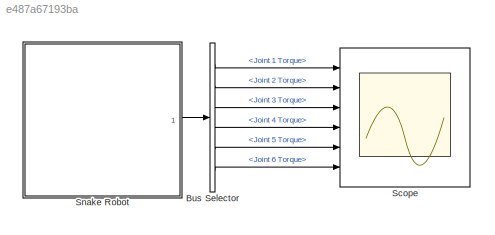
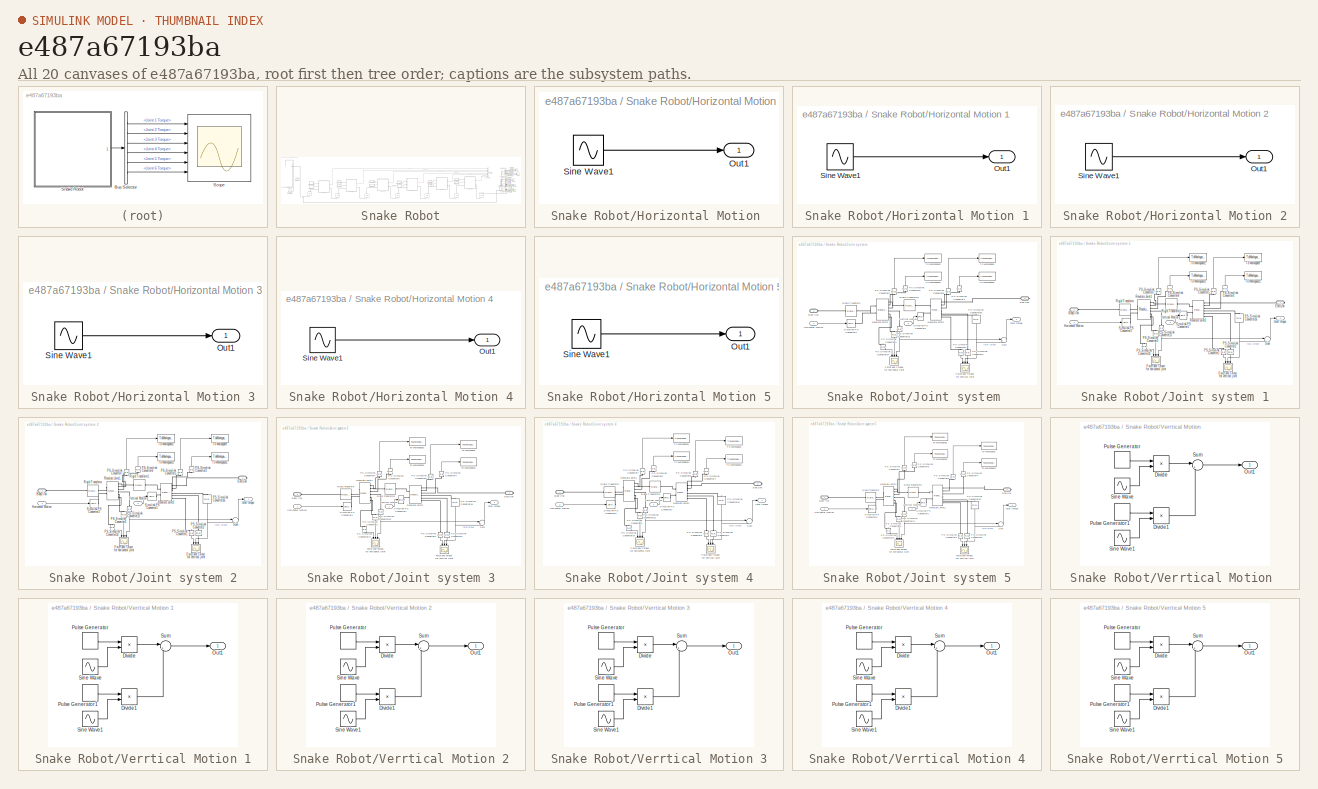
[diagram: thumbnail index - all 20 canvases of the model, root first then tree order]
MODEL slx_e487a67193ba
KIND model
CONFIG AbsTol = auto
CONFIG EnableMultiTasking = on
CONFIG FixedStep = auto
CONFIG MaxStep = auto
CONFIG MinStep = auto
CONFIG PreLoadFcn = robotParameters;
CONFIG RelTol = 1e-3
CONFIG SampleTimeConstraint = Unconstrained
CONFIG Solver = VariableStepAuto
CONFIG SolverName = VariableStepAuto
CONFIG StartTime = 0.0
CONFIG StopTime = 2
BLOCK [BusSelector] Bus Selector
  OutputAsBus = off
  OutputSignals = Joint 1 Torque,Joint 2 Torque,Joint 3 Torque,Joint 4 Torque,Joint 5 Torque,Joint 6 Torque
  Ports = [1, 6]
BLOCK [Scope] Scope
  Floating = off
  NumInputPorts = 6
  Ports = [6]
  ScopeSpecificationString = Simulink.scopes.TimeScopeBlockCfg('CurrentConfiguration', extmgr.ConfigurationSet(extmgr.Configuration('Core','General UI',true),extmgr.Configuration('Core','Source UI',true),extmgr.Configuration('Sources','WiredSimulink',true,'DataLoggingVariableName','ScopeData2'),extmgr.Configuration('Visuals','Time Domain',true,'SerializedDisplays',{struct('MinYLimReal','-0.09785','MaxYLimReal','0.12066','YLab...<+1497ch>
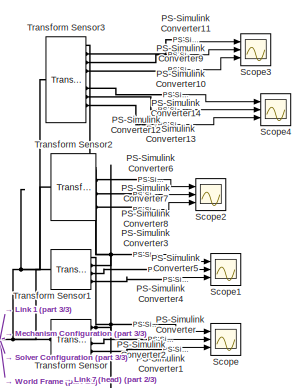
[diagram: Snake Robot - part 1/3, middle right region]
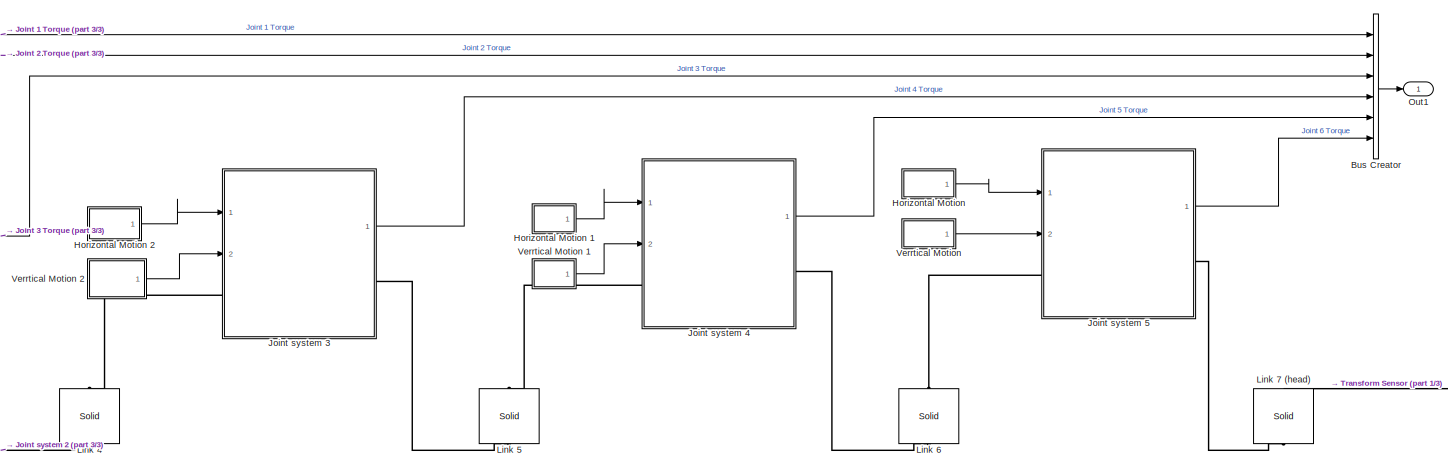
[diagram: Snake Robot - part 2/3, middle right region]
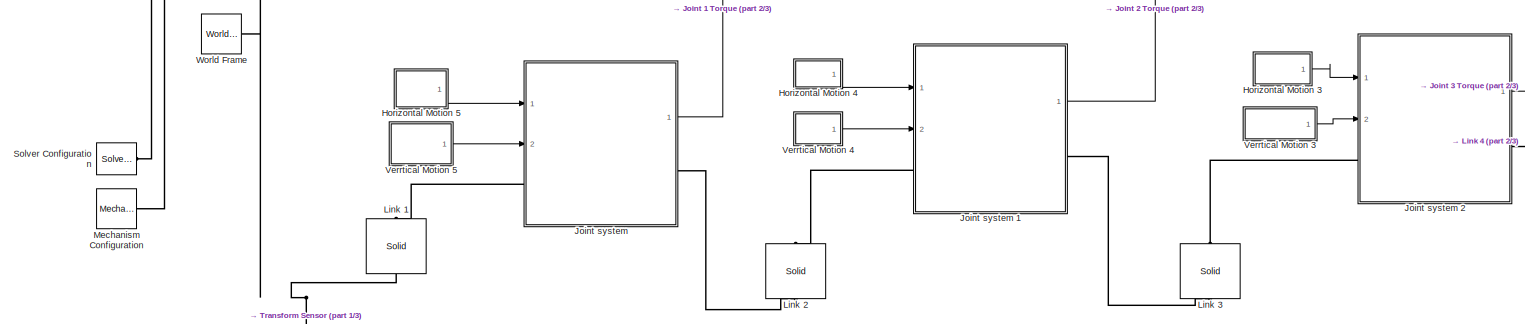
[diagram: Snake Robot - part 3/3, middle left region]
BLOCK [SubSystem] Snake Robot
  Ports = [0, 1]
  RequestExecContextInheritance = off
BLOCK [BusCreator] Snake Robot/Bus Creator
  DisplayOption = bar
  InheritFromInputs = on
  Inputs = 6
  Ports = [6, 1]
BLOCK [SubSystem] Snake Robot/Horizontal Motion 
  Ports = [0, 1]
  RequestExecContextInheritance = off
BLOCK [Outport] Snake Robot/Horizontal Motion /Out1
  IconDisplay = Port number
BLOCK [Sin] Snake Robot/Horizontal Motion /Sine Wave1
  Amplitude = amp
  Bias = turn
  Frequency = speed
  Phase = 90
  Ports = [0, 1]
BLOCK [SubSystem] Snake Robot/Horizontal Motion 1
  Ports = [0, 1]
  RequestExecContextInheritance = off
BLOCK [Outport] Snake Robot/Horizontal Motion 1/Out1
  IconDisplay = Port number
BLOCK [Sin] Snake Robot/Horizontal Motion 1/Sine Wave1
  Amplitude = amp
  Bias = turn
  Frequency = speed
  Phase = 90 * 2
  Ports = [0, 1]
  SampleTime = 0
BLOCK [SubSystem] Snake Robot/Horizontal Motion 2
  Ports = [0, 1]
  RequestExecContextInheritance = off
BLOCK [Outport] Snake Robot/Horizontal Motion 2/Out1
  IconDisplay = Port number
BLOCK [Sin] Snake Robot/Horizontal Motion 2/Sine Wave1
  Amplitude = amp
  Bias = turn
  Frequency = speed
  Phase = 90 * 3
  Ports = [0, 1]
  SampleTime = 0
BLOCK [SubSystem] Snake Robot/Horizontal Motion 3
  Ports = [0, 1]
  RequestExecContextInheritance = off
BLOCK [Outport] Snake Robot/Horizontal Motion 3/Out1
  IconDisplay = Port number
BLOCK [Sin] Snake Robot/Horizontal Motion 3/Sine Wave1
  Amplitude = amp
  Bias = turn
  Frequency = speed
  Phase = 90 * 3
  Ports = [0, 1]
  SampleTime = 0
BLOCK [SubSystem] Snake Robot/Horizontal Motion 4
  Ports = [0, 1]
  RequestExecContextInheritance = off
BLOCK [Outport] Snake Robot/Horizontal Motion 4/Out1
  IconDisplay = Port number
BLOCK [Sin] Snake Robot/Horizontal Motion 4/Sine Wave1
  Amplitude = amp
  Bias = turn
  Frequency = speed
  Phase = 90 * 4
  Ports = [0, 1]
  SampleTime = 0
BLOCK [SubSystem] Snake Robot/Horizontal Motion 5
  Ports = [0, 1]
  RequestExecContextInheritance = off
BLOCK [Outport] Snake Robot/Horizontal Motion 5/Out1
  IconDisplay = Port number
BLOCK [Sin] Snake Robot/Horizontal Motion 5/Sine Wave1
  Amplitude = amp
  Bias = turn
  Frequency = speed
  Phase = 90 * 5
  Ports = [0, 1]
  SampleTime = 0
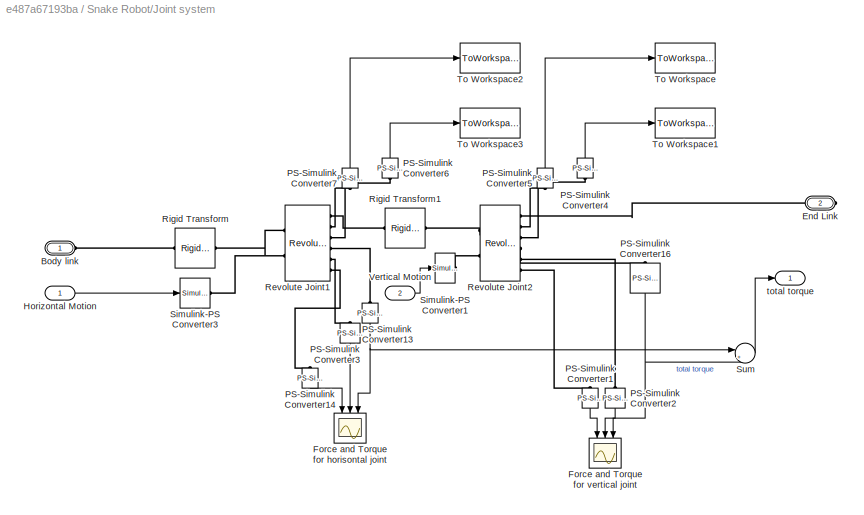
BLOCK [SubSystem] Snake Robot/Joint system 
  Ports = [2, 1, 0, 0, 0, 1, 1]
  RequestExecContextInheritance = off
BLOCK [PMIOPort] Snake Robot/Joint system /Body link
  Side = Left
BLOCK [PMIOPort] Snake Robot/Joint system /End Link 
  Port = 2
  Side = Right
BLOCK [Scope] Snake Robot/Joint system /Force and Torque for horisontal joint
  Floating = off
  NumInputPorts = 3
  Ports = [3]
  ScopeSpecificationString = Simulink.scopes.TimeScopeBlockCfg('CurrentConfiguration', extmgr.ConfigurationSet(extmgr.Configuration('Core','General UI',true),extmgr.Configuration('Core','Source UI',true),extmgr.Configuration('Sources','WiredSimulink',true,'DataLoggingLimitDataPoints',true,'DataLoggingSaveFormat','Array','DataLoggingDecimation','1','DataLoggingDecimateData',true,'DataLoggingVariableName','ScopeData1'),extmgr.C...<+3206ch>  <repeated x12 — deduplicated; at blocks: Force and Torque for horisontal joint, Force and Torque for vertical joint>
BLOCK [Scope] Snake Robot/Joint system /Force and Torque for vertical joint
  Floating = off
  NumInputPorts = 3
  Ports = [3]
BLOCK [Inport] Snake Robot/Joint system /Horizontal Motion
  IconDisplay = Port number
BLOCK [Reference] Snake Robot/Joint system /PS-Simulink Converter1  REF=nesl_utility/PS-Simulink
Converter
  Ports = [0, 1, 0, 0, 0, 1]
  SourceBlock = nesl_utility/PS-Simulink\nConverter
  SourceProductBaseCode = SS
  SourceProductName = Simscape
  SourceType = PS-Simulink\nConverter
BLOCK [Reference] Snake Robot/Joint system /PS-Simulink Converter13  REF=nesl_utility/PS-Simulink
Converter
  Ports = [0, 1, 0, 0, 0, 1]
  SourceBlock = nesl_utility/PS-Simulink\nConverter
  SourceProductBaseCode = SS
  SourceProductName = Simscape
  SourceType = PS-Simulink\nConverter
BLOCK [Reference] Snake Robot/Joint system /PS-Simulink Converter14  REF=nesl_utility/PS-Simulink
Converter
  Ports = [0, 1, 0, 0, 0, 1]
  SourceBlock = nesl_utility/PS-Simulink\nConverter
  SourceProductBaseCode = SS
  SourceProductName = Simscape
  SourceType = PS-Simulink\nConverter
BLOCK [Reference] Snake Robot/Joint system /PS-Simulink Converter16  REF=nesl_utility/PS-Simulink
Converter
  Ports = [0, 1, 0, 0, 0, 1]
  SourceBlock = nesl_utility/PS-Simulink\nConverter
  SourceProductBaseCode = SS
  SourceProductName = Simscape
  SourceType = PS-Simulink\nConverter
BLOCK [Reference] Snake Robot/Joint system /PS-Simulink Converter2  REF=nesl_utility/PS-Simulink
Converter
  Ports = [0, 1, 0, 0, 0, 1]
  SourceBlock = nesl_utility/PS-Simulink\nConverter
  SourceProductBaseCode = SS
  SourceProductName = Simscape
  SourceType = PS-Simulink\nConverter
BLOCK [Reference] Snake Robot/Joint system /PS-Simulink Converter3  REF=nesl_utility/PS-Simulink
Converter
  Ports = [0, 1, 0, 0, 0, 1]
  SourceBlock = nesl_utility/PS-Simulink\nConverter
  SourceProductBaseCode = SS
  SourceProductName = Simscape
  SourceType = PS-Simulink\nConverter
BLOCK [Reference] Snake Robot/Joint system /PS-Simulink Converter4  REF=nesl_utility/PS-Simulink
Converter
  Ports = [0, 1, 0, 0, 0, 1]
  SourceBlock = nesl_utility/PS-Simulink\nConverter
  SourceProductBaseCode = SS
  SourceProductName = Simscape
  SourceType = PS-Simulink\nConverter
BLOCK [Reference] Snake Robot/Joint system /PS-Simulink Converter5  REF=nesl_utility/PS-Simulink
Converter
  Ports = [0, 1, 0, 0, 0, 1]
  SourceBlock = nesl_utility/PS-Simulink\nConverter
  SourceProductBaseCode = SS
  SourceProductName = Simscape
  SourceType = PS-Simulink\nConverter
BLOCK [Reference] Snake Robot/Joint system /PS-Simulink Converter6  REF=nesl_utility/PS-Simulink
Converter
  Ports = [0, 1, 0, 0, 0, 1]
  SourceBlock = nesl_utility/PS-Simulink\nConverter
  SourceProductBaseCode = SS
  SourceProductName = Simscape
  SourceType = PS-Simulink\nConverter
BLOCK [Reference] Snake Robot/Joint system /PS-Simulink Converter7  REF=nesl_utility/PS-Simulink
Converter
  Ports = [0, 1, 0, 0, 0, 1]
  SourceBlock = nesl_utility/PS-Simulink\nConverter
  SourceProductBaseCode = SS
  SourceProductName = Simscape
  SourceType = PS-Simulink\nConverter
BLOCK [Reference] Snake Robot/Joint system /Revolute Joint1  REF=sm_lib/Joints/Revolute Joint
  Ports = [0, 0, 0, 0, 0, 2, 6]
  SourceBlock = sm_lib/Joints/Revolute Joint
  SourceProductBaseCode = MS
  SourceProductName = Simscape Multibody
  SourceType = Revolute Joint
BLOCK [Reference] Snake Robot/Joint system /Revolute Joint2  REF=sm_lib/Joints/Revolute Joint
  Ports = [0, 0, 0, 0, 0, 2, 6]
  SourceBlock = sm_lib/Joints/Revolute Joint
  SourceProductBaseCode = MS
  SourceProductName = Simscape Multibody
  SourceType = Revolute Joint
BLOCK [Reference] Snake Robot/Joint system /Rigid Transform  REF=sm_lib/Frames and
Transforms/Rigid
Transform
  Ports = [0, 0, 0, 0, 0, 1, 1]
  SourceBlock = sm_lib/Frames and\nTransforms/Rigid\nTransform
  SourceProductBaseCode = MS
  SourceProductName = Simscape Multibody
  SourceType = Rigid\nTransform
BLOCK [Reference] Snake Robot/Joint system /Rigid Transform1  REF=sm_lib/Frames and
Transforms/Rigid
Transform
  Ports = [0, 0, 0, 0, 0, 1, 1]
  SourceBlock = sm_lib/Frames and\nTransforms/Rigid\nTransform
  SourceProductBaseCode = MS
  SourceProductName = Simscape Multibody
  SourceType = Rigid\nTransform
BLOCK [Reference] Snake Robot/Joint system /Simulink-PS Converter1  REF=nesl_utility/Simulink-PS
Converter
  Ports = [1, 0, 0, 0, 0, 0, 1]
  SourceBlock = nesl_utility/Simulink-PS\nConverter
  SourceProductBaseCode = SS
  SourceProductName = Simscape
  SourceType = Simulink-PS\nConverter
BLOCK [Reference] Snake Robot/Joint system /Simulink-PS Converter3  REF=nesl_utility/Simulink-PS
Converter
  Ports = [1, 0, 0, 0, 0, 0, 1]
  SourceBlock = nesl_utility/Simulink-PS\nConverter
  SourceProductBaseCode = SS
  SourceProductName = Simscape
  SourceType = Simulink-PS\nConverter
BLOCK [Sum] Snake Robot/Joint system /Sum
  IconShape = round
  InputSameDT = off
  Inputs = |++
  OutDataTypeStr = Inherit: Inherit via internal rule
  Ports = [2, 1]
  SaturateOnIntegerOverflow = off
BLOCK [ToWorkspace] Snake Robot/Joint system /To Workspace
  FixptAsFi = on
  MaxDataPoints = inf
  Ports = [1]
  SampleTime = -1
  VariableName = t2
BLOCK [ToWorkspace] Snake Robot/Joint system /To Workspace1
  FixptAsFi = on
  MaxDataPoints = inf
  Ports = [1]
  SampleTime = -1
  VariableName = dt2
BLOCK [ToWorkspace] Snake Robot/Joint system /To Workspace2
  FixptAsFi = on
  MaxDataPoints = inf
  Ports = [1]
  SampleTime = -1
  VariableName = t1
BLOCK [ToWorkspace] Snake Robot/Joint system /To Workspace3
  FixptAsFi = on
  MaxDataPoints = inf
  Ports = [1]
  SampleTime = -1
  VariableName = dt1
BLOCK [Inport] Snake Robot/Joint system /Vertical Motion
  IconDisplay = Port number
  Port = 2
BLOCK [Outport] Snake Robot/Joint system /total torque
  IconDisplay = Port number
BLOCK [SubSystem] Snake Robot/Joint system 1
  Ports = [2, 1, 0, 0, 0, 1, 1]
  RequestExecContextInheritance = off
BLOCK [PMIOPort] Snake Robot/Joint system 1/Body link
  Side = Left
BLOCK [PMIOPort] Snake Robot/Joint system 1/End Link 
  Port = 2
  Side = Right
BLOCK [Scope] Snake Robot/Joint system 1/Force and Torque for horisontal joint
  Floating = off
  NumInputPorts = 3
  Ports = [3]
BLOCK [Scope] Snake Robot/Joint system 1/Force and Torque for vertical joint
  Floating = off
  NumInputPorts = 3
  Ports = [3]
BLOCK [Inport] Snake Robot/Joint system 1/Horizontal Motion
  IconDisplay = Port number
BLOCK [Reference] Snake Robot/Joint system 1/PS-Simulink Converter1  REF=nesl_utility/PS-Simulink
Converter
  Ports = [0, 1, 0, 0, 0, 1]
  SourceBlock = nesl_utility/PS-Simulink\nConverter
  SourceProductBaseCode = SS
  SourceProductName = Simscape
  SourceType = PS-Simulink\nConverter
BLOCK [Reference] Snake Robot/Joint system 1/PS-Simulink Converter13  REF=nesl_utility/PS-Simulink
Converter
  Ports = [0, 1, 0, 0, 0, 1]
  SourceBlock = nesl_utility/PS-Simulink\nConverter
  SourceProductBaseCode = SS
  SourceProductName = Simscape
  SourceType = PS-Simulink\nConverter
BLOCK [Reference] Snake Robot/Joint system 1/PS-Simulink Converter14  REF=nesl_utility/PS-Simulink
Converter
  Ports = [0, 1, 0, 0, 0, 1]
  SourceBlock = nesl_utility/PS-Simulink\nConverter
  SourceProductBaseCode = SS
  SourceProductName = Simscape
  SourceType = PS-Simulink\nConverter
BLOCK [Reference] Snake Robot/Joint system 1/PS-Simulink Converter16  REF=nesl_utility/PS-Simulink
Converter
  Ports = [0, 1, 0, 0, 0, 1]
  SourceBlock = nesl_utility/PS-Simulink\nConverter
  SourceProductBaseCode = SS
  SourceProductName = Simscape
  SourceType = PS-Simulink\nConverter
BLOCK [Reference] Snake Robot/Joint system 1/PS-Simulink Converter2  REF=nesl_utility/PS-Simulink
Converter
  Ports = [0, 1, 0, 0, 0, 1]
  SourceBlock = nesl_utility/PS-Simulink\nConverter
  SourceProductBaseCode = SS
  SourceProductName = Simscape
  SourceType = PS-Simulink\nConverter
BLOCK [Reference] Snake Robot/Joint system 1/PS-Simulink Converter3  REF=nesl_utility/PS-Simulink
Converter
  Ports = [0, 1, 0, 0, 0, 1]
  SourceBlock = nesl_utility/PS-Simulink\nConverter
  SourceProductBaseCode = SS
  SourceProductName = Simscape
  SourceType = PS-Simulink\nConverter
BLOCK [Reference] Snake Robot/Joint system 1/PS-Simulink Converter4  REF=nesl_utility/PS-Simulink
Converter
  Ports = [0, 1, 0, 0, 0, 1]
  SourceBlock = nesl_utility/PS-Simulink\nConverter
  SourceProductBaseCode = SS
  SourceProductName = Simscape
  SourceType = PS-Simulink\nConverter
BLOCK [Reference] Snake Robot/Joint system 1/PS-Simulink Converter5  REF=nesl_utility/PS-Simulink
Converter
  Ports = [0, 1, 0, 0, 0, 1]
  SourceBlock = nesl_utility/PS-Simulink\nConverter
  SourceProductBaseCode = SS
  SourceProductName = Simscape
  SourceType = PS-Simulink\nConverter
BLOCK [Reference] Snake Robot/Joint system 1/PS-Simulink Converter6  REF=nesl_utility/PS-Simulink
Converter
  Ports = [0, 1, 0, 0, 0, 1]
  SourceBlock = nesl_utility/PS-Simulink\nConverter
  SourceProductBaseCode = SS
  SourceProductName = Simscape
  SourceType = PS-Simulink\nConverter
BLOCK [Reference] Snake Robot/Joint system 1/PS-Simulink Converter7  REF=nesl_utility/PS-Simulink
Converter
  Ports = [0, 1, 0, 0, 0, 1]
  SourceBlock = nesl_utility/PS-Simulink\nConverter
  SourceProductBaseCode = SS
  SourceProductName = Simscape
  SourceType = PS-Simulink\nConverter
BLOCK [Reference] Snake Robot/Joint system 1/Revolute Joint1  REF=sm_lib/Joints/Revolute Joint
  Ports = [0, 0, 0, 0, 0, 2, 6]
  SourceBlock = sm_lib/Joints/Revolute Joint
  SourceProductBaseCode = MS
  SourceProductName = Simscape Multibody
  SourceType = Revolute Joint
BLOCK [Reference] Snake Robot/Joint system 1/Revolute Joint2  REF=sm_lib/Joints/Revolute Joint
  Ports = [0, 0, 0, 0, 0, 2, 6]
  SourceBlock = sm_lib/Joints/Revolute Joint
  SourceProductBaseCode = MS
  SourceProductName = Simscape Multibody
  SourceType = Revolute Joint
BLOCK [Reference] Snake Robot/Joint system 1/Rigid Transform  REF=sm_lib/Frames and
Transforms/Rigid
Transform
  Ports = [0, 0, 0, 0, 0, 1, 1]
  SourceBlock = sm_lib/Frames and\nTransforms/Rigid\nTransform
  SourceProductBaseCode = MS
  SourceProductName = Simscape Multibody
  SourceType = Rigid\nTransform
BLOCK [Reference] Snake Robot/Joint system 1/Rigid Transform1  REF=sm_lib/Frames and
Transforms/Rigid
Transform
  Ports = [0, 0, 0, 0, 0, 1, 1]
  SourceBlock = sm_lib/Frames and\nTransforms/Rigid\nTransform
  SourceProductBaseCode = MS
  SourceProductName = Simscape Multibody
  SourceType = Rigid\nTransform
BLOCK [Reference] Snake Robot/Joint system 1/Simulink-PS Converter1  REF=nesl_utility/Simulink-PS
Converter
  Ports = [1, 0, 0, 0, 0, 0, 1]
  SourceBlock = nesl_utility/Simulink-PS\nConverter
  SourceProductBaseCode = SS
  SourceProductName = Simscape
  SourceType = Simulink-PS\nConverter
BLOCK [Reference] Snake Robot/Joint system 1/Simulink-PS Converter3  REF=nesl_utility/Simulink-PS
Converter
  Ports = [1, 0, 0, 0, 0, 0, 1]
  SourceBlock = nesl_utility/Simulink-PS\nConverter
  SourceProductBaseCode = SS
  SourceProductName = Simscape
  SourceType = Simulink-PS\nConverter
BLOCK [Sum] Snake Robot/Joint system 1/Sum
  IconShape = round
  InputSameDT = off
  Inputs = |++
  OutDataTypeStr = Inherit: Inherit via internal rule
  Ports = [2, 1]
  SaturateOnIntegerOverflow = off
BLOCK [ToWorkspace] Snake Robot/Joint system 1/To Workspace
  FixptAsFi = on
  MaxDataPoints = inf
  Ports = [1]
  SampleTime = -1
  VariableName = t4
BLOCK [ToWorkspace] Snake Robot/Joint system 1/To Workspace1
  FixptAsFi = on
  MaxDataPoints = inf
  Ports = [1]
  SampleTime = -1
  VariableName = dt4
BLOCK [ToWorkspace] Snake Robot/Joint system 1/To Workspace2
  FixptAsFi = on
  MaxDataPoints = inf
  Ports = [1]
  SampleTime = -1
  VariableName = t3
BLOCK [ToWorkspace] Snake Robot/Joint system 1/To Workspace3
  FixptAsFi = on
  MaxDataPoints = inf
  Ports = [1]
  SampleTime = -1
  VariableName = dt3
BLOCK [Inport] Snake Robot/Joint system 1/Vertical Motion
  IconDisplay = Port number
  Port = 2
BLOCK [Outport] Snake Robot/Joint system 1/total torque
  IconDisplay = Port number
BLOCK [SubSystem] Snake Robot/Joint system 2
  Ports = [2, 1, 0, 0, 0, 1, 1]
  RequestExecContextInheritance = off
BLOCK [PMIOPort] Snake Robot/Joint system 2/Body link
  Side = Left
BLOCK [PMIOPort] Snake Robot/Joint system 2/End Link 
  Port = 2
  Side = Right
BLOCK [Scope] Snake Robot/Joint system 2/Force and Torque for horisontal joint
  Floating = off
  NumInputPorts = 3
  Ports = [3]
BLOCK [Scope] Snake Robot/Joint system 2/Force and Torque for vertical joint
  Floating = off
  NumInputPorts = 3
  Ports = [3]
BLOCK [Inport] Snake Robot/Joint system 2/Horizontal Motion
  IconDisplay = Port number
BLOCK [Reference] Snake Robot/Joint system 2/PS-Simulink Converter1  REF=nesl_utility/PS-Simulink
Converter
  Ports = [0, 1, 0, 0, 0, 1]
  SourceBlock = nesl_utility/PS-Simulink\nConverter
  SourceProductBaseCode = SS
  SourceProductName = Simscape
  SourceType = PS-Simulink\nConverter
BLOCK [Reference] Snake Robot/Joint system 2/PS-Simulink Converter13  REF=nesl_utility/PS-Simulink
Converter
  Ports = [0, 1, 0, 0, 0, 1]
  SourceBlock = nesl_utility/PS-Simulink\nConverter
  SourceProductBaseCode = SS
  SourceProductName = Simscape
  SourceType = PS-Simulink\nConverter
BLOCK [Reference] Snake Robot/Joint system 2/PS-Simulink Converter14  REF=nesl_utility/PS-Simulink
Converter
  Ports = [0, 1, 0, 0, 0, 1]
  SourceBlock = nesl_utility/PS-Simulink\nConverter
  SourceProductBaseCode = SS
  SourceProductName = Simscape
  SourceType = PS-Simulink\nConverter
BLOCK [Reference] Snake Robot/Joint system 2/PS-Simulink Converter16  REF=nesl_utility/PS-Simulink
Converter
  Ports = [0, 1, 0, 0, 0, 1]
  SourceBlock = nesl_utility/PS-Simulink\nConverter
  SourceProductBaseCode = SS
  SourceProductName = Simscape
  SourceType = PS-Simulink\nConverter
BLOCK [Reference] Snake Robot/Joint system 2/PS-Simulink Converter2  REF=nesl_utility/PS-Simulink
Converter
  Ports = [0, 1, 0, 0, 0, 1]
  SourceBlock = nesl_utility/PS-Simulink\nConverter
  SourceProductBaseCode = SS
  SourceProductName = Simscape
  SourceType = PS-Simulink\nConverter
BLOCK [Reference] Snake Robot/Joint system 2/PS-Simulink Converter3  REF=nesl_utility/PS-Simulink
Converter
  Ports = [0, 1, 0, 0, 0, 1]
  SourceBlock = nesl_utility/PS-Simulink\nConverter
  SourceProductBaseCode = SS
  SourceProductName = Simscape
  SourceType = PS-Simulink\nConverter
BLOCK [Reference] Snake Robot/Joint system 2/PS-Simulink Converter4  REF=nesl_utility/PS-Simulink
Converter
  Ports = [0, 1, 0, 0, 0, 1]
  SourceBlock = nesl_utility/PS-Simulink\nConverter
  SourceProductBaseCode = SS
  SourceProductName = Simscape
  SourceType = PS-Simulink\nConverter
BLOCK [Reference] Snake Robot/Joint system 2/PS-Simulink Converter5  REF=nesl_utility/PS-Simulink
Converter
  Ports = [0, 1, 0, 0, 0, 1]
  SourceBlock = nesl_utility/PS-Simulink\nConverter
  SourceProductBaseCode = SS
  SourceProductName = Simscape
  SourceType = PS-Simulink\nConverter
BLOCK [Reference] Snake Robot/Joint system 2/PS-Simulink Converter6  REF=nesl_utility/PS-Simulink
Converter
  Ports = [0, 1, 0, 0, 0, 1]
  SourceBlock = nesl_utility/PS-Simulink\nConverter
  SourceProductBaseCode = SS
  SourceProductName = Simscape
  SourceType = PS-Simulink\nConverter
BLOCK [Reference] Snake Robot/Joint system 2/PS-Simulink Converter7  REF=nesl_utility/PS-Simulink
Converter
  Ports = [0, 1, 0, 0, 0, 1]
  SourceBlock = nesl_utility/PS-Simulink\nConverter
  SourceProductBaseCode = SS
  SourceProductName = Simscape
  SourceType = PS-Simulink\nConverter
BLOCK [Reference] Snake Robot/Joint system 2/Revolute Joint1  REF=sm_lib/Joints/Revolute Joint
  Ports = [0, 0, 0, 0, 0, 2, 6]
  SourceBlock = sm_lib/Joints/Revolute Joint
  SourceProductBaseCode = MS
  SourceProductName = Simscape Multibody
  SourceType = Revolute Joint
BLOCK [Reference] Snake Robot/Joint system 2/Revolute Joint2  REF=sm_lib/Joints/Revolute Joint
  Ports = [0, 0, 0, 0, 0, 2, 6]
  SourceBlock = sm_lib/Joints/Revolute Joint
  SourceProductBaseCode = MS
  SourceProductName = Simscape Multibody
  SourceType = Revolute Joint
BLOCK [Reference] Snake Robot/Joint system 2/Rigid Transform  REF=sm_lib/Frames and
Transforms/Rigid
Transform
  Ports = [0, 0, 0, 0, 0, 1, 1]
  SourceBlock = sm_lib/Frames and\nTransforms/Rigid\nTransform
  SourceProductBaseCode = MS
  SourceProductName = Simscape Multibody
  SourceType = Rigid\nTransform
BLOCK [Reference] Snake Robot/Joint system 2/Rigid Transform1  REF=sm_lib/Frames and
Transforms/Rigid
Transform
  Ports = [0, 0, 0, 0, 0, 1, 1]
  SourceBlock = sm_lib/Frames and\nTransforms/Rigid\nTransform
  SourceProductBaseCode = MS
  SourceProductName = Simscape Multibody
  SourceType = Rigid\nTransform
BLOCK [Reference] Snake Robot/Joint system 2/Simulink-PS Converter1  REF=nesl_utility/Simulink-PS
Converter
  Ports = [1, 0, 0, 0, 0, 0, 1]
  SourceBlock = nesl_utility/Simulink-PS\nConverter
  SourceProductBaseCode = SS
  SourceProductName = Simscape
  SourceType = Simulink-PS\nConverter
BLOCK [Reference] Snake Robot/Joint system 2/Simulink-PS Converter3  REF=nesl_utility/Simulink-PS
Converter
  Ports = [1, 0, 0, 0, 0, 0, 1]
  SourceBlock = nesl_utility/Simulink-PS\nConverter
  SourceProductBaseCode = SS
  SourceProductName = Simscape
  SourceType = Simulink-PS\nConverter
BLOCK [Sum] Snake Robot/Joint system 2/Sum
  IconShape = round
  InputSameDT = off
  Inputs = |++
  OutDataTypeStr = Inherit: Inherit via internal rule
  Ports = [2, 1]
  SaturateOnIntegerOverflow = off
BLOCK [ToWorkspace] Snake Robot/Joint system 2/To Workspace
  FixptAsFi = on
  MaxDataPoints = inf
  Ports = [1]
  SampleTime = -1
  VariableName = t6
BLOCK [ToWorkspace] Snake Robot/Joint system 2/To Workspace1
  FixptAsFi = on
  MaxDataPoints = inf
  Ports = [1]
  SampleTime = -1
  VariableName = dt6
BLOCK [ToWorkspace] Snake Robot/Joint system 2/To Workspace2
  FixptAsFi = on
  MaxDataPoints = inf
  Ports = [1]
  SampleTime = -1
  VariableName = t5
BLOCK [ToWorkspace] Snake Robot/Joint system 2/To Workspace3
  FixptAsFi = on
  MaxDataPoints = inf
  Ports = [1]
  SampleTime = -1
  VariableName = dt5
BLOCK [Inport] Snake Robot/Joint system 2/Vertical Motion
  IconDisplay = Port number
  Port = 2
BLOCK [Outport] Snake Robot/Joint system 2/total torque
  IconDisplay = Port number
BLOCK [SubSystem] Snake Robot/Joint system 3
  Ports = [2, 1, 0, 0, 0, 1, 1]
  RequestExecContextInheritance = off
BLOCK [PMIOPort] Snake Robot/Joint system 3/Body link
  Side = Left
BLOCK [PMIOPort] Snake Robot/Joint system 3/End Link 
  Port = 2
  Side = Right
BLOCK [Scope] Snake Robot/Joint system 3/Force and Torque for horisontal joint
  Floating = off
  NumInputPorts = 3
  Ports = [3]
BLOCK [Scope] Snake Robot/Joint system 3/Force and Torque for vertical joint
  Floating = off
  NumInputPorts = 3
  Ports = [3]
BLOCK [Inport] Snake Robot/Joint system 3/Horizontal Motion
  IconDisplay = Port number
BLOCK [Reference] Snake Robot/Joint system 3/PS-Simulink Converter1  REF=nesl_utility/PS-Simulink
Converter
  Ports = [0, 1, 0, 0, 0, 1]
  SourceBlock = nesl_utility/PS-Simulink\nConverter
  SourceProductBaseCode = SS
  SourceProductName = Simscape
  SourceType = PS-Simulink\nConverter
BLOCK [Reference] Snake Robot/Joint system 3/PS-Simulink Converter13  REF=nesl_utility/PS-Simulink
Converter
  Ports = [0, 1, 0, 0, 0, 1]
  SourceBlock = nesl_utility/PS-Simulink\nConverter
  SourceProductBaseCode = SS
  SourceProductName = Simscape
  SourceType = PS-Simulink\nConverter
BLOCK [Reference] Snake Robot/Joint system 3/PS-Simulink Converter14  REF=nesl_utility/PS-Simulink
Converter
  Ports = [0, 1, 0, 0, 0, 1]
  SourceBlock = nesl_utility/PS-Simulink\nConverter
  SourceProductBaseCode = SS
  SourceProductName = Simscape
  SourceType = PS-Simulink\nConverter
BLOCK [Reference] Snake Robot/Joint system 3/PS-Simulink Converter16  REF=nesl_utility/PS-Simulink
Converter
  Ports = [0, 1, 0, 0, 0, 1]
  SourceBlock = nesl_utility/PS-Simulink\nConverter
  SourceProductBaseCode = SS
  SourceProductName = Simscape
  SourceType = PS-Simulink\nConverter
BLOCK [Reference] Snake Robot/Joint system 3/PS-Simulink Converter2  REF=nesl_utility/PS-Simulink
Converter
  Ports = [0, 1, 0, 0, 0, 1]
  SourceBlock = nesl_utility/PS-Simulink\nConverter
  SourceProductBaseCode = SS
  SourceProductName = Simscape
  SourceType = PS-Simulink\nConverter
BLOCK [Reference] Snake Robot/Joint system 3/PS-Simulink Converter3  REF=nesl_utility/PS-Simulink
Converter
  Ports = [0, 1, 0, 0, 0, 1]
  SourceBlock = nesl_utility/PS-Simulink\nConverter
  SourceProductBaseCode = SS
  SourceProductName = Simscape
  SourceType = PS-Simulink\nConverter
BLOCK [Reference] Snake Robot/Joint system 3/PS-Simulink Converter4  REF=nesl_utility/PS-Simulink
Converter
  Ports = [0, 1, 0, 0, 0, 1]
  SourceBlock = nesl_utility/PS-Simulink\nConverter
  SourceProductBaseCode = SS
  SourceProductName = Simscape
  SourceType = PS-Simulink\nConverter
BLOCK [Reference] Snake Robot/Joint system 3/PS-Simulink Converter5  REF=nesl_utility/PS-Simulink
Converter
  Ports = [0, 1, 0, 0, 0, 1]
  SourceBlock = nesl_utility/PS-Simulink\nConverter
  SourceProductBaseCode = SS
  SourceProductName = Simscape
  SourceType = PS-Simulink\nConverter
BLOCK [Reference] Snake Robot/Joint system 3/PS-Simulink Converter6  REF=nesl_utility/PS-Simulink
Converter
  Ports = [0, 1, 0, 0, 0, 1]
  SourceBlock = nesl_utility/PS-Simulink\nConverter
  SourceProductBaseCode = SS
  SourceProductName = Simscape
  SourceType = PS-Simulink\nConverter
BLOCK [Reference] Snake Robot/Joint system 3/PS-Simulink Converter7  REF=nesl_utility/PS-Simulink
Converter
  Ports = [0, 1, 0, 0, 0, 1]
  SourceBlock = nesl_utility/PS-Simulink\nConverter
  SourceProductBaseCode = SS
  SourceProductName = Simscape
  SourceType = PS-Simulink\nConverter
BLOCK [Reference] Snake Robot/Joint system 3/Revolute Joint1  REF=sm_lib/Joints/Revolute Joint
  Ports = [0, 0, 0, 0, 0, 2, 6]
  SourceBlock = sm_lib/Joints/Revolute Joint
  SourceProductBaseCode = MS
  SourceProductName = Simscape Multibody
  SourceType = Revolute Joint
BLOCK [Reference] Snake Robot/Joint system 3/Revolute Joint2  REF=sm_lib/Joints/Revolute Joint
  Ports = [0, 0, 0, 0, 0, 2, 6]
  SourceBlock = sm_lib/Joints/Revolute Joint
  SourceProductBaseCode = MS
  SourceProductName = Simscape Multibody
  SourceType = Revolute Joint
BLOCK [Reference] Snake Robot/Joint system 3/Rigid Transform  REF=sm_lib/Frames and
Transforms/Rigid
Transform
  Ports = [0, 0, 0, 0, 0, 1, 1]
  SourceBlock = sm_lib/Frames and\nTransforms/Rigid\nTransform
  SourceProductBaseCode = MS
  SourceProductName = Simscape Multibody
  SourceType = Rigid\nTransform
BLOCK [Reference] Snake Robot/Joint system 3/Rigid Transform1  REF=sm_lib/Frames and
Transforms/Rigid
Transform
  Ports = [0, 0, 0, 0, 0, 1, 1]
  SourceBlock = sm_lib/Frames and\nTransforms/Rigid\nTransform
  SourceProductBaseCode = MS
  SourceProductName = Simscape Multibody
  SourceType = Rigid\nTransform
BLOCK [Reference] Snake Robot/Joint system 3/Simulink-PS Converter1  REF=nesl_utility/Simulink-PS
Converter
  Ports = [1, 0, 0, 0, 0, 0, 1]
  SourceBlock = nesl_utility/Simulink-PS\nConverter
  SourceProductBaseCode = SS
  SourceProductName = Simscape
  SourceType = Simulink-PS\nConverter
BLOCK [Reference] Snake Robot/Joint system 3/Simulink-PS Converter3  REF=nesl_utility/Simulink-PS
Converter
  Ports = [1, 0, 0, 0, 0, 0, 1]
  SourceBlock = nesl_utility/Simulink-PS\nConverter
  SourceProductBaseCode = SS
  SourceProductName = Simscape
  SourceType = Simulink-PS\nConverter
BLOCK [Sum] Snake Robot/Joint system 3/Sum
  IconShape = round
  InputSameDT = off
  Inputs = |++
  OutDataTypeStr = Inherit: Inherit via internal rule
  Ports = [2, 1]
  SaturateOnIntegerOverflow = off
BLOCK [ToWorkspace] Snake Robot/Joint system 3/To Workspace
  FixptAsFi = on
  MaxDataPoints = inf
  Ports = [1]
  SampleTime = -1
  VariableName = t8
BLOCK [ToWorkspace] Snake Robot/Joint system 3/To Workspace1
  FixptAsFi = on
  MaxDataPoints = inf
  Ports = [1]
  SampleTime = -1
  VariableName = dt8
BLOCK [ToWorkspace] Snake Robot/Joint system 3/To Workspace2
  FixptAsFi = on
  MaxDataPoints = inf
  Ports = [1]
  SampleTime = -1
  VariableName = t7
BLOCK [ToWorkspace] Snake Robot/Joint system 3/To Workspace3
  FixptAsFi = on
  MaxDataPoints = inf
  Ports = [1]
  SampleTime = -1
  VariableName = dt7
BLOCK [Inport] Snake Robot/Joint system 3/Vertical Motion
  IconDisplay = Port number
  Port = 2
BLOCK [Outport] Snake Robot/Joint system 3/total torque
  IconDisplay = Port number
BLOCK [SubSystem] Snake Robot/Joint system 4
  Ports = [2, 1, 0, 0, 0, 1, 1]
  RequestExecContextInheritance = off
BLOCK [PMIOPort] Snake Robot/Joint system 4/Body link
  Side = Left
BLOCK [PMIOPort] Snake Robot/Joint system 4/End Link 
  Port = 2
  Side = Right
BLOCK [Scope] Snake Robot/Joint system 4/Force and Torque for horisontal joint
  Floating = off
  NumInputPorts = 3
  Ports = [3]
BLOCK [Scope] Snake Robot/Joint system 4/Force and Torque for vertical joint
  Floating = off
  NumInputPorts = 3
  Ports = [3]
BLOCK [Inport] Snake Robot/Joint system 4/Horizontal Motion
  IconDisplay = Port number
BLOCK [Reference] Snake Robot/Joint system 4/PS-Simulink Converter1  REF=nesl_utility/PS-Simulink
Converter
  Ports = [0, 1, 0, 0, 0, 1]
  SourceBlock = nesl_utility/PS-Simulink\nConverter
  SourceProductBaseCode = SS
  SourceProductName = Simscape
  SourceType = PS-Simulink\nConverter
BLOCK [Reference] Snake Robot/Joint system 4/PS-Simulink Converter13  REF=nesl_utility/PS-Simulink
Converter
  Ports = [0, 1, 0, 0, 0, 1]
  SourceBlock = nesl_utility/PS-Simulink\nConverter
  SourceProductBaseCode = SS
  SourceProductName = Simscape
  SourceType = PS-Simulink\nConverter
BLOCK [Reference] Snake Robot/Joint system 4/PS-Simulink Converter14  REF=nesl_utility/PS-Simulink
Converter
  Ports = [0, 1, 0, 0, 0, 1]
  SourceBlock = nesl_utility/PS-Simulink\nConverter
  SourceProductBaseCode = SS
  SourceProductName = Simscape
  SourceType = PS-Simulink\nConverter
BLOCK [Reference] Snake Robot/Joint system 4/PS-Simulink Converter16  REF=nesl_utility/PS-Simulink
Converter
  Ports = [0, 1, 0, 0, 0, 1]
  SourceBlock = nesl_utility/PS-Simulink\nConverter
  SourceProductBaseCode = SS
  SourceProductName = Simscape
  SourceType = PS-Simulink\nConverter
BLOCK [Reference] Snake Robot/Joint system 4/PS-Simulink Converter2  REF=nesl_utility/PS-Simulink
Converter
  Ports = [0, 1, 0, 0, 0, 1]
  SourceBlock = nesl_utility/PS-Simulink\nConverter
  SourceProductBaseCode = SS
  SourceProductName = Simscape
  SourceType = PS-Simulink\nConverter
BLOCK [Reference] Snake Robot/Joint system 4/PS-Simulink Converter3  REF=nesl_utility/PS-Simulink
Converter
  Ports = [0, 1, 0, 0, 0, 1]
  SourceBlock = nesl_utility/PS-Simulink\nConverter
  SourceProductBaseCode = SS
  SourceProductName = Simscape
  SourceType = PS-Simulink\nConverter
BLOCK [Reference] Snake Robot/Joint system 4/PS-Simulink Converter4  REF=nesl_utility/PS-Simulink
Converter
  Ports = [0, 1, 0, 0, 0, 1]
  SourceBlock = nesl_utility/PS-Simulink\nConverter
  SourceProductBaseCode = SS
  SourceProductName = Simscape
  SourceType = PS-Simulink\nConverter
BLOCK [Reference] Snake Robot/Joint system 4/PS-Simulink Converter5  REF=nesl_utility/PS-Simulink
Converter
  Ports = [0, 1, 0, 0, 0, 1]
  SourceBlock = nesl_utility/PS-Simulink\nConverter
  SourceProductBaseCode = SS
  SourceProductName = Simscape
  SourceType = PS-Simulink\nConverter
BLOCK [Reference] Snake Robot/Joint system 4/PS-Simulink Converter6  REF=nesl_utility/PS-Simulink
Converter
  Ports = [0, 1, 0, 0, 0, 1]
  SourceBlock = nesl_utility/PS-Simulink\nConverter
  SourceProductBaseCode = SS
  SourceProductName = Simscape
  SourceType = PS-Simulink\nConverter
BLOCK [Reference] Snake Robot/Joint system 4/PS-Simulink Converter7  REF=nesl_utility/PS-Simulink
Converter
  Ports = [0, 1, 0, 0, 0, 1]
  SourceBlock = nesl_utility/PS-Simulink\nConverter
  SourceProductBaseCode = SS
  SourceProductName = Simscape
  SourceType = PS-Simulink\nConverter
BLOCK [Reference] Snake Robot/Joint system 4/Revolute Joint1  REF=sm_lib/Joints/Revolute Joint
  Ports = [0, 0, 0, 0, 0, 2, 6]
  SourceBlock = sm_lib/Joints/Revolute Joint
  SourceProductBaseCode = MS
  SourceProductName = Simscape Multibody
  SourceType = Revolute Joint
BLOCK [Reference] Snake Robot/Joint system 4/Revolute Joint2  REF=sm_lib/Joints/Revolute Joint
  Ports = [0, 0, 0, 0, 0, 2, 6]
  SourceBlock = sm_lib/Joints/Revolute Joint
  SourceProductBaseCode = MS
  SourceProductName = Simscape Multibody
  SourceType = Revolute Joint
BLOCK [Reference] Snake Robot/Joint system 4/Rigid Transform  REF=sm_lib/Frames and
Transforms/Rigid
Transform
  Ports = [0, 0, 0, 0, 0, 1, 1]
  SourceBlock = sm_lib/Frames and\nTransforms/Rigid\nTransform
  SourceProductBaseCode = MS
  SourceProductName = Simscape Multibody
  SourceType = Rigid\nTransform
BLOCK [Reference] Snake Robot/Joint system 4/Rigid Transform1  REF=sm_lib/Frames and
Transforms/Rigid
Transform
  Ports = [0, 0, 0, 0, 0, 1, 1]
  SourceBlock = sm_lib/Frames and\nTransforms/Rigid\nTransform
  SourceProductBaseCode = MS
  SourceProductName = Simscape Multibody
  SourceType = Rigid\nTransform
BLOCK [Reference] Snake Robot/Joint system 4/Simulink-PS Converter1  REF=nesl_utility/Simulink-PS
Converter
  Ports = [1, 0, 0, 0, 0, 0, 1]
  SourceBlock = nesl_utility/Simulink-PS\nConverter
  SourceProductBaseCode = SS
  SourceProductName = Simscape
  SourceType = Simulink-PS\nConverter
BLOCK [Reference] Snake Robot/Joint system 4/Simulink-PS Converter3  REF=nesl_utility/Simulink-PS
Converter
  Ports = [1, 0, 0, 0, 0, 0, 1]
  SourceBlock = nesl_utility/Simulink-PS\nConverter
  SourceProductBaseCode = SS
  SourceProductName = Simscape
  SourceType = Simulink-PS\nConverter
BLOCK [Sum] Snake Robot/Joint system 4/Sum
  IconShape = round
  InputSameDT = off
  Inputs = |++
  OutDataTypeStr = Inherit: Inherit via internal rule
  Ports = [2, 1]
  SaturateOnIntegerOverflow = off
BLOCK [ToWorkspace] Snake Robot/Joint system 4/To Workspace
  FixptAsFi = on
  MaxDataPoints = inf
  Ports = [1]
  SampleTime = -1
  VariableName = t10
BLOCK [ToWorkspace] Snake Robot/Joint system 4/To Workspace1
  FixptAsFi = on
  MaxDataPoints = inf
  Ports = [1]
  SampleTime = -1
  VariableName = dt10
BLOCK [ToWorkspace] Snake Robot/Joint system 4/To Workspace2
  FixptAsFi = on
  MaxDataPoints = inf
  Ports = [1]
  SampleTime = -1
  VariableName = t9
BLOCK [ToWorkspace] Snake Robot/Joint system 4/To Workspace3
  FixptAsFi = on
  MaxDataPoints = inf
  Ports = [1]
  SampleTime = -1
  VariableName = dt9
BLOCK [Inport] Snake Robot/Joint system 4/Vertical Motion
  IconDisplay = Port number
  Port = 2
BLOCK [Outport] Snake Robot/Joint system 4/total torque
  IconDisplay = Port number
BLOCK [SubSystem] Snake Robot/Joint system 5
  Ports = [2, 1, 0, 0, 0, 1, 1]
  RequestExecContextInheritance = off
BLOCK [PMIOPort] Snake Robot/Joint system 5/Body link
  Side = Left
BLOCK [PMIOPort] Snake Robot/Joint system 5/End Link 
  Port = 2
  Side = Right
BLOCK [Scope] Snake Robot/Joint system 5/Force and Torque for horisontal joint
  Floating = off
  NumInputPorts = 3
  Ports = [3]
BLOCK [Scope] Snake Robot/Joint system 5/Force and Torque for vertical joint
  Floating = off
  NumInputPorts = 3
  Ports = [3]
BLOCK [Inport] Snake Robot/Joint system 5/Horizontal Motion
  IconDisplay = Port number
BLOCK [Reference] Snake Robot/Joint system 5/PS-Simulink Converter1  REF=nesl_utility/PS-Simulink
Converter
  Ports = [0, 1, 0, 0, 0, 1]
  SourceBlock = nesl_utility/PS-Simulink\nConverter
  SourceProductBaseCode = SS
  SourceProductName = Simscape
  SourceType = PS-Simulink\nConverter
BLOCK [Reference] Snake Robot/Joint system 5/PS-Simulink Converter13  REF=nesl_utility/PS-Simulink
Converter
  Ports = [0, 1, 0, 0, 0, 1]
  SourceBlock = nesl_utility/PS-Simulink\nConverter
  SourceProductBaseCode = SS
  SourceProductName = Simscape
  SourceType = PS-Simulink\nConverter
BLOCK [Reference] Snake Robot/Joint system 5/PS-Simulink Converter14  REF=nesl_utility/PS-Simulink
Converter
  Ports = [0, 1, 0, 0, 0, 1]
  SourceBlock = nesl_utility/PS-Simulink\nConverter
  SourceProductBaseCode = SS
  SourceProductName = Simscape
  SourceType = PS-Simulink\nConverter
BLOCK [Reference] Snake Robot/Joint system 5/PS-Simulink Converter16  REF=nesl_utility/PS-Simulink
Converter
  Ports = [0, 1, 0, 0, 0, 1]
  SourceBlock = nesl_utility/PS-Simulink\nConverter
  SourceProductBaseCode = SS
  SourceProductName = Simscape
  SourceType = PS-Simulink\nConverter
BLOCK [Reference] Snake Robot/Joint system 5/PS-Simulink Converter2  REF=nesl_utility/PS-Simulink
Converter
  Ports = [0, 1, 0, 0, 0, 1]
  SourceBlock = nesl_utility/PS-Simulink\nConverter
  SourceProductBaseCode = SS
  SourceProductName = Simscape
  SourceType = PS-Simulink\nConverter
BLOCK [Reference] Snake Robot/Joint system 5/PS-Simulink Converter3  REF=nesl_utility/PS-Simulink
Converter
  Ports = [0, 1, 0, 0, 0, 1]
  SourceBlock = nesl_utility/PS-Simulink\nConverter
  SourceProductBaseCode = SS
  SourceProductName = Simscape
  SourceType = PS-Simulink\nConverter
BLOCK [Reference] Snake Robot/Joint system 5/PS-Simulink Converter4  REF=nesl_utility/PS-Simulink
Converter
  Ports = [0, 1, 0, 0, 0, 1]
  SourceBlock = nesl_utility/PS-Simulink\nConverter
  SourceProductBaseCode = SS
  SourceProductName = Simscape
  SourceType = PS-Simulink\nConverter
BLOCK [Reference] Snake Robot/Joint system 5/PS-Simulink Converter5  REF=nesl_utility/PS-Simulink
Converter
  Ports = [0, 1, 0, 0, 0, 1]
  SourceBlock = nesl_utility/PS-Simulink\nConverter
  SourceProductBaseCode = SS
  SourceProductName = Simscape
  SourceType = PS-Simulink\nConverter
BLOCK [Reference] Snake Robot/Joint system 5/PS-Simulink Converter6  REF=nesl_utility/PS-Simulink
Converter
  Ports = [0, 1, 0, 0, 0, 1]
  SourceBlock = nesl_utility/PS-Simulink\nConverter
  SourceProductBaseCode = SS
  SourceProductName = Simscape
  SourceType = PS-Simulink\nConverter
BLOCK [Reference] Snake Robot/Joint system 5/PS-Simulink Converter7  REF=nesl_utility/PS-Simulink
Converter
  Ports = [0, 1, 0, 0, 0, 1]
  SourceBlock = nesl_utility/PS-Simulink\nConverter
  SourceProductBaseCode = SS
  SourceProductName = Simscape
  SourceType = PS-Simulink\nConverter
BLOCK [Reference] Snake Robot/Joint system 5/Revolute Joint1  REF=sm_lib/Joints/Revolute Joint
  Ports = [0, 0, 0, 0, 0, 2, 6]
  SourceBlock = sm_lib/Joints/Revolute Joint
  SourceProductBaseCode = MS
  SourceProductName = Simscape Multibody
  SourceType = Revolute Joint
BLOCK [Reference] Snake Robot/Joint system 5/Revolute Joint2  REF=sm_lib/Joints/Revolute Joint
  Ports = [0, 0, 0, 0, 0, 2, 6]
  SourceBlock = sm_lib/Joints/Revolute Joint
  SourceProductBaseCode = MS
  SourceProductName = Simscape Multibody
  SourceType = Revolute Joint
BLOCK [Reference] Snake Robot/Joint system 5/Rigid Transform  REF=sm_lib/Frames and
Transforms/Rigid
Transform
  Ports = [0, 0, 0, 0, 0, 1, 1]
  SourceBlock = sm_lib/Frames and\nTransforms/Rigid\nTransform
  SourceProductBaseCode = MS
  SourceProductName = Simscape Multibody
  SourceType = Rigid\nTransform
BLOCK [Reference] Snake Robot/Joint system 5/Rigid Transform1  REF=sm_lib/Frames and
Transforms/Rigid
Transform
  Ports = [0, 0, 0, 0, 0, 1, 1]
  SourceBlock = sm_lib/Frames and\nTransforms/Rigid\nTransform
  SourceProductBaseCode = MS
  SourceProductName = Simscape Multibody
  SourceType = Rigid\nTransform
BLOCK [Reference] Snake Robot/Joint system 5/Simulink-PS Converter1  REF=nesl_utility/Simulink-PS
Converter
  Ports = [1, 0, 0, 0, 0, 0, 1]
  SourceBlock = nesl_utility/Simulink-PS\nConverter
  SourceProductBaseCode = SS
  SourceProductName = Simscape
  SourceType = Simulink-PS\nConverter
BLOCK [Reference] Snake Robot/Joint system 5/Simulink-PS Converter3  REF=nesl_utility/Simulink-PS
Converter
  Ports = [1, 0, 0, 0, 0, 0, 1]
  SourceBlock = nesl_utility/Simulink-PS\nConverter
  SourceProductBaseCode = SS
  SourceProductName = Simscape
  SourceType = Simulink-PS\nConverter
BLOCK [Sum] Snake Robot/Joint system 5/Sum
  IconShape = round
  InputSameDT = off
  Inputs = |++
  OutDataTypeStr = Inherit: Inherit via internal rule
  Ports = [2, 1]
  SaturateOnIntegerOverflow = off
BLOCK [ToWorkspace] Snake Robot/Joint system 5/To Workspace
  FixptAsFi = on
  MaxDataPoints = inf
  Ports = [1]
  SampleTime = -1
  VariableName = t12
BLOCK [ToWorkspace] Snake Robot/Joint system 5/To Workspace1
  FixptAsFi = on
  MaxDataPoints = inf
  Ports = [1]
  SampleTime = -1
  VariableName = dt12
BLOCK [ToWorkspace] Snake Robot/Joint system 5/To Workspace2
  FixptAsFi = on
  MaxDataPoints = inf
  Ports = [1]
  SampleTime = -1
  VariableName = t11
BLOCK [ToWorkspace] Snake Robot/Joint system 5/To Workspace3
  FixptAsFi = on
  MaxDataPoints = inf
  Ports = [1]
  SampleTime = -1
  VariableName = dt11
BLOCK [Inport] Snake Robot/Joint system 5/Vertical Motion
  IconDisplay = Port number
  Port = 2
BLOCK [Outport] Snake Robot/Joint system 5/total torque
  IconDisplay = Port number
BLOCK [Reference] Snake Robot/Link 1   REF=sm_lib/Body Elements/Solid
  Ports = [0, 0, 0, 0, 0, 1, 1]
  SourceBlock = sm_lib/Body Elements/Solid
  SourceProductBaseCode = MS
  SourceProductName = Simscape Multibody
  SourceType = Solid
BLOCK [Reference] Snake Robot/Link 2  REF=sm_lib/Body Elements/Solid
  Ports = [0, 0, 0, 0, 0, 1, 1]
  SourceBlock = sm_lib/Body Elements/Solid
  SourceProductBaseCode = MS
  SourceProductName = Simscape Multibody
  SourceType = Solid
BLOCK [Reference] Snake Robot/Link 3  REF=sm_lib/Body Elements/Solid
  Ports = [0, 0, 0, 0, 0, 1, 1]
  SourceBlock = sm_lib/Body Elements/Solid
  SourceProductBaseCode = MS
  SourceProductName = Simscape Multibody
  SourceType = Solid
BLOCK [Reference] Snake Robot/Link 4  REF=sm_lib/Body Elements/Solid
  Ports = [0, 0, 0, 0, 0, 1, 1]
  SourceBlock = sm_lib/Body Elements/Solid
  SourceProductBaseCode = MS
  SourceProductName = Simscape Multibody
  SourceType = Solid
BLOCK [Reference] Snake Robot/Link 5  REF=sm_lib/Body Elements/Solid
  Ports = [0, 0, 0, 0, 0, 1, 1]
  SourceBlock = sm_lib/Body Elements/Solid
  SourceProductBaseCode = MS
  SourceProductName = Simscape Multibody
  SourceType = Solid
BLOCK [Reference] Snake Robot/Link 6  REF=sm_lib/Body Elements/Solid
  Ports = [0, 0, 0, 0, 0, 1, 1]
  SourceBlock = sm_lib/Body Elements/Solid
  SourceProductBaseCode = MS
  SourceProductName = Simscape Multibody
  SourceType = Solid
BLOCK [Reference] Snake Robot/Link 7 (head)  REF=sm_lib/Body Elements/Solid
  Ports = [0, 0, 0, 0, 0, 1, 1]
  SourceBlock = sm_lib/Body Elements/Solid
  SourceProductBaseCode = MS
  SourceProductName = Simscape Multibody
  SourceType = Solid
BLOCK [Reference] Snake Robot/Mechanism Configuration  REF=sm_lib/Utilities/Mechanism
Configuration
  Ports = [0, 0, 0, 0, 0, 0, 1]
  SourceBlock = sm_lib/Utilities/Mechanism\nConfiguration
  SourceProductBaseCode = MS
  SourceProductName = Simscape Multibody
  SourceType = Mechanism\nConfiguration
BLOCK [Outport] Snake Robot/Out1
  IconDisplay = Port number
BLOCK [Reference] Snake Robot/PS-Simulink Converter  REF=nesl_utility/PS-Simulink
Converter
  Ports = [0, 1, 0, 0, 0, 1]
  SourceBlock = nesl_utility/PS-Simulink\nConverter
  SourceProductBaseCode = SS
  SourceProductName = Simscape
  SourceType = PS-Simulink\nConverter
BLOCK [Reference] Snake Robot/PS-Simulink Converter1  REF=nesl_utility/PS-Simulink
Converter
  Ports = [0, 1, 0, 0, 0, 1]
  SourceBlock = nesl_utility/PS-Simulink\nConverter
  SourceProductBaseCode = SS
  SourceProductName = Simscape
  SourceType = PS-Simulink\nConverter
BLOCK [Reference] Snake Robot/PS-Simulink Converter10  REF=nesl_utility/PS-Simulink
Converter
  Ports = [0, 1, 0, 0, 0, 1]
  SourceBlock = nesl_utility/PS-Simulink\nConverter
  SourceProductBaseCode = SS
  SourceProductName = Simscape
  SourceType = PS-Simulink\nConverter
BLOCK [Reference] Snake Robot/PS-Simulink Converter11  REF=nesl_utility/PS-Simulink
Converter
  Ports = [0, 1, 0, 0, 0, 1]
  SourceBlock = nesl_utility/PS-Simulink\nConverter
  SourceProductBaseCode = SS
  SourceProductName = Simscape
  SourceType = PS-Simulink\nConverter
BLOCK [Reference] Snake Robot/PS-Simulink Converter12  REF=nesl_utility/PS-Simulink
Converter
  Ports = [0, 1, 0, 0, 0, 1]
  SourceBlock = nesl_utility/PS-Simulink\nConverter
  SourceProductBaseCode = SS
  SourceProductName = Simscape
  SourceType = PS-Simulink\nConverter
BLOCK [Reference] Snake Robot/PS-Simulink Converter13  REF=nesl_utility/PS-Simulink
Converter
  Ports = [0, 1, 0, 0, 0, 1]
  SourceBlock = nesl_utility/PS-Simulink\nConverter
  SourceProductBaseCode = SS
  SourceProductName = Simscape
  SourceType = PS-Simulink\nConverter
BLOCK [Reference] Snake Robot/PS-Simulink Converter14  REF=nesl_utility/PS-Simulink
Converter
  Ports = [0, 1, 0, 0, 0, 1]
  SourceBlock = nesl_utility/PS-Simulink\nConverter
  SourceProductBaseCode = SS
  SourceProductName = Simscape
  SourceType = PS-Simulink\nConverter
BLOCK [Reference] Snake Robot/PS-Simulink Converter2  REF=nesl_utility/PS-Simulink
Converter
  Ports = [0, 1, 0, 0, 0, 1]
  SourceBlock = nesl_utility/PS-Simulink\nConverter
  SourceProductBaseCode = SS
  SourceProductName = Simscape
  SourceType = PS-Simulink\nConverter
BLOCK [Reference] Snake Robot/PS-Simulink Converter3  REF=nesl_utility/PS-Simulink
Converter
  Ports = [0, 1, 0, 0, 0, 1]
  SourceBlock = nesl_utility/PS-Simulink\nConverter
  SourceProductBaseCode = SS
  SourceProductName = Simscape
  SourceType = PS-Simulink\nConverter
BLOCK [Reference] Snake Robot/PS-Simulink Converter4  REF=nesl_utility/PS-Simulink
Converter
  Ports = [0, 1, 0, 0, 0, 1]
  SourceBlock = nesl_utility/PS-Simulink\nConverter
  SourceProductBaseCode = SS
  SourceProductName = Simscape
  SourceType = PS-Simulink\nConverter
BLOCK [Reference] Snake Robot/PS-Simulink Converter5  REF=nesl_utility/PS-Simulink
Converter
  Ports = [0, 1, 0, 0, 0, 1]
  SourceBlock = nesl_utility/PS-Simulink\nConverter
  SourceProductBaseCode = SS
  SourceProductName = Simscape
  SourceType = PS-Simulink\nConverter
BLOCK [Reference] Snake Robot/PS-Simulink Converter6  REF=nesl_utility/PS-Simulink
Converter
  Ports = [0, 1, 0, 0, 0, 1]
  SourceBlock = nesl_utility/PS-Simulink\nConverter
  SourceProductBaseCode = SS
  SourceProductName = Simscape
  SourceType = PS-Simulink\nConverter
BLOCK [Reference] Snake Robot/PS-Simulink Converter7  REF=nesl_utility/PS-Simulink
Converter
  Ports = [0, 1, 0, 0, 0, 1]
  SourceBlock = nesl_utility/PS-Simulink\nConverter
  SourceProductBaseCode = SS
  SourceProductName = Simscape
  SourceType = PS-Simulink\nConverter
BLOCK [Reference] Snake Robot/PS-Simulink Converter8  REF=nesl_utility/PS-Simulink
Converter
  Ports = [0, 1, 0, 0, 0, 1]
  SourceBlock = nesl_utility/PS-Simulink\nConverter
  SourceProductBaseCode = SS
  SourceProductName = Simscape
  SourceType = PS-Simulink\nConverter
BLOCK [Reference] Snake Robot/PS-Simulink Converter9  REF=nesl_utility/PS-Simulink
Converter
  Ports = [0, 1, 0, 0, 0, 1]
  SourceBlock = nesl_utility/PS-Simulink\nConverter
  SourceProductBaseCode = SS
  SourceProductName = Simscape
  SourceType = PS-Simulink\nConverter
BLOCK [Scope] Snake Robot/Scope
  Floating = off
  NumInputPorts = 3
  Ports = [3]
  ScopeSpecificationString = Simulink.scopes.TimeScopeBlockCfg('CurrentConfiguration', extmgr.ConfigurationSet(extmgr.Configuration('Core','General UI',true),extmgr.Configuration('Core','Source UI',true),extmgr.Configuration('Sources','WiredSimulink',true,'DataLoggingVariableName','ScopeData1'),extmgr.Configuration('Visuals','Time Domain',true,'SerializedDisplays',{struct('MinYLimReal','-7.91029','MaxYLimReal','19.96455','YLa...<+2821ch>
BLOCK [Scope] Snake Robot/Scope1
  Floating = off
  NumInputPorts = 3
  Ports = [3]
  ScopeSpecificationString = Simulink.scopes.TimeScopeBlockCfg('CurrentConfiguration', extmgr.ConfigurationSet(extmgr.Configuration('Core','General UI',true),extmgr.Configuration('Core','Source UI',true),extmgr.Configuration('Sources','WiredSimulink',true,'DataLoggingVariableName','ScopeData2'),extmgr.Configuration('Visuals','Time Domain',true,'SerializedDisplays',{struct('MinYLimReal','-0.07529','MaxYLimReal','0.07529','YLab...<+3081ch>
BLOCK [Scope] Snake Robot/Scope2
  Floating = off
  NumInputPorts = 3
  Ports = [3]
  ScopeSpecificationString = Simulink.scopes.TimeScopeBlockCfg('CurrentConfiguration', extmgr.ConfigurationSet(extmgr.Configuration('Core','General UI',true),extmgr.Configuration('Core','Source UI',true),extmgr.Configuration('Sources','WiredSimulink',true,'DataLoggingVariableName','ScopeData1'),extmgr.Configuration('Visuals','Time Domain',true,'SerializedDisplays',{struct('MinYLimReal','-0.33973','MaxYLimReal','0.34117','YLab...<+3081ch>
BLOCK [Scope] Snake Robot/Scope3
  Floating = off
  NumInputPorts = 3
  Ports = [3]
  ScopeSpecificationString = Simulink.scopes.TimeScopeBlockCfg('CurrentConfiguration', extmgr.ConfigurationSet(extmgr.Configuration('Core','General UI',true),extmgr.Configuration('Core','Source UI',true),extmgr.Configuration('Sources','WiredSimulink',true,'DataLoggingVariableName','ScopeData2'),extmgr.Configuration('Visuals','Time Domain',true,'SerializedDisplays',{struct('MinYLimReal','3.84417','MaxYLimReal','6.09221','YLabe...<+3268ch>
BLOCK [Scope] Snake Robot/Scope4
  Floating = off
  NumInputPorts = 3
  Ports = [3]
  ScopeSpecificationString = Simulink.scopes.TimeScopeBlockCfg('CurrentConfiguration', extmgr.ConfigurationSet(extmgr.Configuration('Core','General UI',true),extmgr.Configuration('Core','Source UI',true),extmgr.Configuration('Sources','WiredSimulink',true,'DataLoggingVariableName','ScopeData3'),extmgr.Configuration('Visuals','Time Domain',true,'SerializedDisplays',{struct('MinYLimReal','-46.31704','MaxYLimReal','10.43214','YL...<+3089ch>
BLOCK [Reference] Snake Robot/Solver Configuration  REF=nesl_utility/Solver
Configuration
  Ports = [0, 0, 0, 0, 0, 0, 1]
  SourceBlock = nesl_utility/Solver\nConfiguration
  SourceProductBaseCode = SS
  SourceProductName = Simscape
  SourceType = Solver\nConfiguration
BLOCK [Reference] Snake Robot/Transform Sensor  REF=sm_lib/Frames and
Transforms/Transform
Sensor
  Ports = [0, 0, 0, 0, 0, 1, 4]
  SourceBlock = sm_lib/Frames and\nTransforms/Transform\nSensor
  SourceProductBaseCode = MS
  SourceProductName = Simscape Multibody
  SourceType = Transform\nSensor
BLOCK [Reference] Snake Robot/Transform Sensor1  REF=sm_lib/Frames and
Transforms/Transform
Sensor
  Ports = [0, 0, 0, 0, 0, 1, 4]
  SourceBlock = sm_lib/Frames and\nTransforms/Transform\nSensor
  SourceProductBaseCode = MS
  SourceProductName = Simscape Multibody
  SourceType = Transform\nSensor
BLOCK [Reference] Snake Robot/Transform Sensor2  REF=sm_lib/Frames and
Transforms/Transform
Sensor
  Ports = [0, 0, 0, 0, 0, 1, 4]
  SourceBlock = sm_lib/Frames and\nTransforms/Transform\nSensor
  SourceProductBaseCode = MS
  SourceProductName = Simscape Multibody
  SourceType = Transform\nSensor
BLOCK [Reference] Snake Robot/Transform Sensor3  REF=sm_lib/Frames and
Transforms/Transform
Sensor
  Ports = [0, 0, 0, 0, 0, 1, 9]
  SourceBlock = sm_lib/Frames and\nTransforms/Transform\nSensor
  SourceProductBaseCode = MS
  SourceProductName = Simscape Multibody
  SourceType = Transform\nSensor
BLOCK [SubSystem] Snake Robot/Verrtical Motion 
  Ports = [0, 1]
  RequestExecContextInheritance = off
BLOCK [Product] Snake Robot/Verrtical Motion /Divide
  InputSameDT = off
  Inputs = **
  OutDataTypeStr = Inherit: Inherit via internal rule
  Ports = [2, 1]
  RndMeth = Floor
  SaturateOnIntegerOverflow = off
BLOCK [Product] Snake Robot/Verrtical Motion /Divide1
  InputSameDT = off
  Inputs = **
  OutDataTypeStr = Inherit: Inherit via internal rule
  Ports = [2, 1]
  RndMeth = Floor
  SaturateOnIntegerOverflow = off
BLOCK [Outport] Snake Robot/Verrtical Motion /Out1
  IconDisplay = Port number
BLOCK [DiscretePulseGenerator] Snake Robot/Verrtical Motion /Pulse Generator
  Ports = [0, 1]
  PulseType = Time based
  PulseWidth = 50
BLOCK [DiscretePulseGenerator] Snake Robot/Verrtical Motion /Pulse Generator1
  PhaseDelay = 1
  Ports = [0, 1]
  PulseType = Time based
  PulseWidth = 50
BLOCK [Sin] Snake Robot/Verrtical Motion /Sine Wave
  Amplitude = v_amp + 5
  Bias = turn
  Frequency = speed
  Phase = 2.09
  Ports = [0, 1]
BLOCK [Sin] Snake Robot/Verrtical Motion /Sine Wave1
  Amplitude = v_amp
  Bias = turn
  Frequency = speed
  Phase = 2.09
  Ports = [0, 1]
BLOCK [Sum] Snake Robot/Verrtical Motion /Sum
  IconShape = round
  InputSameDT = off
  Inputs = |++
  OutDataTypeStr = Inherit: Inherit via internal rule
  Ports = [2, 1]
  SaturateOnIntegerOverflow = off
BLOCK [SubSystem] Snake Robot/Verrtical Motion 1
  Ports = [0, 1]
  RequestExecContextInheritance = off
BLOCK [Product] Snake Robot/Verrtical Motion 1/Divide
  InputSameDT = off
  Inputs = **
  OutDataTypeStr = Inherit: Inherit via internal rule
  Ports = [2, 1]
  RndMeth = Floor
  SaturateOnIntegerOverflow = off
BLOCK [Product] Snake Robot/Verrtical Motion 1/Divide1
  InputSameDT = off
  Inputs = **
  OutDataTypeStr = Inherit: Inherit via internal rule
  Ports = [2, 1]
  RndMeth = Floor
  SaturateOnIntegerOverflow = off
BLOCK [Outport] Snake Robot/Verrtical Motion 1/Out1
  IconDisplay = Port number
BLOCK [DiscretePulseGenerator] Snake Robot/Verrtical Motion 1/Pulse Generator
  Ports = [0, 1]
  PulseType = Time based
  PulseWidth = 50
BLOCK [DiscretePulseGenerator] Snake Robot/Verrtical Motion 1/Pulse Generator1
  PhaseDelay = 1
  Ports = [0, 1]
  PulseType = Time based
  PulseWidth = 50
BLOCK [Sin] Snake Robot/Verrtical Motion 1/Sine Wave
  Amplitude = v_amp + 5
  Frequency = speed
  Phase = 2 * 2.09
  Ports = [0, 1]
  SampleTime = 0
BLOCK [Sin] Snake Robot/Verrtical Motion 1/Sine Wave1
  Amplitude = v_amp
  Frequency = speed
  Phase = 2.09 * 2
  Ports = [0, 1]
  SampleTime = 0
BLOCK [Sum] Snake Robot/Verrtical Motion 1/Sum
  IconShape = round
  InputSameDT = off
  Inputs = |++
  OutDataTypeStr = Inherit: Inherit via internal rule
  Ports = [2, 1]
  SaturateOnIntegerOverflow = off
BLOCK [SubSystem] Snake Robot/Verrtical Motion 2
  Ports = [0, 1]
  RequestExecContextInheritance = off
BLOCK [Product] Snake Robot/Verrtical Motion 2/Divide
  InputSameDT = off
  Inputs = **
  OutDataTypeStr = Inherit: Inherit via internal rule
  Ports = [2, 1]
  RndMeth = Floor
  SaturateOnIntegerOverflow = off
BLOCK [Product] Snake Robot/Verrtical Motion 2/Divide1
  InputSameDT = off
  Inputs = **
  OutDataTypeStr = Inherit: Inherit via internal rule
  Ports = [2, 1]
  RndMeth = Floor
  SaturateOnIntegerOverflow = off
BLOCK [Outport] Snake Robot/Verrtical Motion 2/Out1
  IconDisplay = Port number
BLOCK [DiscretePulseGenerator] Snake Robot/Verrtical Motion 2/Pulse Generator
  Ports = [0, 1]
  PulseType = Time based
  PulseWidth = 50
BLOCK [DiscretePulseGenerator] Snake Robot/Verrtical Motion 2/Pulse Generator1
  PhaseDelay = 1
  Ports = [0, 1]
  PulseType = Time based
  PulseWidth = 50
BLOCK [Sin] Snake Robot/Verrtical Motion 2/Sine Wave
  Amplitude = v_amp+5
  Frequency = speed
  Phase = 2.09 * 3
  Ports = [0, 1]
  SampleTime = 0
BLOCK [Sin] Snake Robot/Verrtical Motion 2/Sine Wave1
  Amplitude = v_amp
  Frequency = speed
  Phase = 2.09 * 3
  Ports = [0, 1]
  SampleTime = 0
BLOCK [Sum] Snake Robot/Verrtical Motion 2/Sum
  IconShape = round
  InputSameDT = off
  Inputs = |++
  OutDataTypeStr = Inherit: Inherit via internal rule
  Ports = [2, 1]
  SaturateOnIntegerOverflow = off
BLOCK [SubSystem] Snake Robot/Verrtical Motion 3
  Ports = [0, 1]
  RequestExecContextInheritance = off
BLOCK [Product] Snake Robot/Verrtical Motion 3/Divide
  InputSameDT = off
  Inputs = **
  OutDataTypeStr = Inherit: Inherit via internal rule
  Ports = [2, 1]
  RndMeth = Floor
  SaturateOnIntegerOverflow = off
BLOCK [Product] Snake Robot/Verrtical Motion 3/Divide1
  InputSameDT = off
  Inputs = **
  OutDataTypeStr = Inherit: Inherit via internal rule
  Ports = [2, 1]
  RndMeth = Floor
  SaturateOnIntegerOverflow = off
BLOCK [Outport] Snake Robot/Verrtical Motion 3/Out1
  IconDisplay = Port number
BLOCK [DiscretePulseGenerator] Snake Robot/Verrtical Motion 3/Pulse Generator
  Ports = [0, 1]
  PulseType = Time based
  PulseWidth = 50
BLOCK [DiscretePulseGenerator] Snake Robot/Verrtical Motion 3/Pulse Generator1
  PhaseDelay = 1
  Ports = [0, 1]
  PulseType = Time based
  PulseWidth = 50
BLOCK [Sin] Snake Robot/Verrtical Motion 3/Sine Wave
  Amplitude = v_amp+5
  Frequency = speed
  Phase = 2.09 * 4
  Ports = [0, 1]
  SampleTime = 0
BLOCK [Sin] Snake Robot/Verrtical Motion 3/Sine Wave1
  Amplitude = v_amp
  Frequency = speed
  Phase = 2.09 * 4
  Ports = [0, 1]
  SampleTime = 0
BLOCK [Sum] Snake Robot/Verrtical Motion 3/Sum
  IconShape = round
  InputSameDT = off
  Inputs = |++
  OutDataTypeStr = Inherit: Inherit via internal rule
  Ports = [2, 1]
  SaturateOnIntegerOverflow = off
BLOCK [SubSystem] Snake Robot/Verrtical Motion 4
  Ports = [0, 1]
  RequestExecContextInheritance = off
BLOCK [Product] Snake Robot/Verrtical Motion 4/Divide
  InputSameDT = off
  Inputs = **
  OutDataTypeStr = Inherit: Inherit via internal rule
  Ports = [2, 1]
  RndMeth = Floor
  SaturateOnIntegerOverflow = off
BLOCK [Product] Snake Robot/Verrtical Motion 4/Divide1
  InputSameDT = off
  Inputs = **
  OutDataTypeStr = Inherit: Inherit via internal rule
  Ports = [2, 1]
  RndMeth = Floor
  SaturateOnIntegerOverflow = off
BLOCK [Outport] Snake Robot/Verrtical Motion 4/Out1
  IconDisplay = Port number
BLOCK [DiscretePulseGenerator] Snake Robot/Verrtical Motion 4/Pulse Generator
  Ports = [0, 1]
  PulseType = Time based
  PulseWidth = 50
BLOCK [DiscretePulseGenerator] Snake Robot/Verrtical Motion 4/Pulse Generator1
  PhaseDelay = 1
  Ports = [0, 1]
  PulseType = Time based
  PulseWidth = 50
BLOCK [Sin] Snake Robot/Verrtical Motion 4/Sine Wave
  Amplitude = v_amp+5
  Frequency = speed
  Phase = 2.09 * 5
  Ports = [0, 1]
  SampleTime = 0
BLOCK [Sin] Snake Robot/Verrtical Motion 4/Sine Wave1
  Amplitude = v_amp
  Frequency = speed
  Phase = 2.09 * 5
  Ports = [0, 1]
  SampleTime = 0
BLOCK [Sum] Snake Robot/Verrtical Motion 4/Sum
  IconShape = round
  InputSameDT = off
  Inputs = |++
  OutDataTypeStr = Inherit: Inherit via internal rule
  Ports = [2, 1]
  SaturateOnIntegerOverflow = off
BLOCK [SubSystem] Snake Robot/Verrtical Motion 5
  Ports = [0, 1]
  RequestExecContextInheritance = off
BLOCK [Product] Snake Robot/Verrtical Motion 5/Divide
  InputSameDT = off
  Inputs = **
  OutDataTypeStr = Inherit: Inherit via internal rule
  Ports = [2, 1]
  RndMeth = Floor
  SaturateOnIntegerOverflow = off
BLOCK [Product] Snake Robot/Verrtical Motion 5/Divide1
  InputSameDT = off
  Inputs = **
  OutDataTypeStr = Inherit: Inherit via internal rule
  Ports = [2, 1]
  RndMeth = Floor
  SaturateOnIntegerOverflow = off
BLOCK [Outport] Snake Robot/Verrtical Motion 5/Out1
  IconDisplay = Port number
BLOCK [DiscretePulseGenerator] Snake Robot/Verrtical Motion 5/Pulse Generator
  Ports = [0, 1]
  PulseType = Time based
  PulseWidth = 50
BLOCK [DiscretePulseGenerator] Snake Robot/Verrtical Motion 5/Pulse Generator1
  PhaseDelay = 1
  Ports = [0, 1]
  PulseType = Time based
  PulseWidth = 50
BLOCK [Sin] Snake Robot/Verrtical Motion 5/Sine Wave
  Amplitude = v_amp+5
  Frequency = speed
  Phase = 2.09 * 6
  Ports = [0, 1]
  SampleTime = 0
BLOCK [Sin] Snake Robot/Verrtical Motion 5/Sine Wave1
  Amplitude = v_amp
  Frequency = speed
  Phase = 2.09 * 6
  Ports = [0, 1]
  SampleTime = 0
BLOCK [Sum] Snake Robot/Verrtical Motion 5/Sum
  IconShape = round
  InputSameDT = off
  Inputs = |++
  OutDataTypeStr = Inherit: Inherit via internal rule
  Ports = [2, 1]
  SaturateOnIntegerOverflow = off
BLOCK [Reference] Snake Robot/World Frame  REF=sm_lib/Frames and
Transforms/World Frame
  Ports = [0, 0, 0, 0, 0, 0, 1]
  SourceBlock = sm_lib/Frames and\nTransforms/World Frame
  SourceProductBaseCode = MS
  SourceProductName = Simscape Multibody
  SourceType = World Frame
LINE Bus Selector:1 -> Scope:1
LINE Bus Selector:2 -> Scope:2
LINE Bus Selector:3 -> Scope:3
LINE Bus Selector:4 -> Scope:4
LINE Bus Selector:5 -> Scope:5
LINE Bus Selector:6 -> Scope:6
LINE Snake Robot/Bus Creator:1 -> Snake Robot/Out1:1
LINE Snake Robot/Horizontal Motion /Sine Wave1:1 -> Snake Robot/Horizontal Motion /Out1:1
LINE Snake Robot/Horizontal Motion 1/Sine Wave1:1 -> Snake Robot/Horizontal Motion 1/Out1:1
LINE Snake Robot/Horizontal Motion 1:1 -> Snake Robot/Joint system 4:1
LINE Snake Robot/Horizontal Motion 2/Sine Wave1:1 -> Snake Robot/Horizontal Motion 2/Out1:1
LINE Snake Robot/Horizontal Motion 2:1 -> Snake Robot/Joint system 3:1
LINE Snake Robot/Horizontal Motion 3/Sine Wave1:1 -> Snake Robot/Horizontal Motion 3/Out1:1
LINE Snake Robot/Horizontal Motion 3:1 -> Snake Robot/Joint system 2:1
LINE Snake Robot/Horizontal Motion 4/Sine Wave1:1 -> Snake Robot/Horizontal Motion 4/Out1:1
LINE Snake Robot/Horizontal Motion 4:1 -> Snake Robot/Joint system 1:1
LINE Snake Robot/Horizontal Motion 5/Sine Wave1:1 -> Snake Robot/Horizontal Motion 5/Out1:1
LINE Snake Robot/Horizontal Motion 5:1 -> Snake Robot/Joint system :1
LINE Snake Robot/Horizontal Motion :1 -> Snake Robot/Joint system 5:1
LINE Snake Robot/Joint system /Horizontal Motion:1 -> Snake Robot/Joint system /Simulink-PS Converter3:1
NET Snake Robot/Joint system /PS-Simulink Converter13:1 -> Snake Robot/Joint system /Force and Torque for horisontal joint:3, Snake Robot/Joint system /Sum:1
LINE Snake Robot/Joint system /PS-Simulink Converter14:1 -> Snake Robot/Joint system /Force and Torque for horisontal joint:1
NET Snake Robot/Joint system /PS-Simulink Converter16:1 -> Snake Robot/Joint system /Force and Torque for vertical joint:3, Snake Robot/Joint system /Sum:2
LINE Snake Robot/Joint system /PS-Simulink Converter1:1 -> Snake Robot/Joint system /Force and Torque for vertical joint:1
LINE Snake Robot/Joint system /PS-Simulink Converter2:1 -> Snake Robot/Joint system /Force and Torque for vertical joint:2
LINE Snake Robot/Joint system /PS-Simulink Converter3:1 -> Snake Robot/Joint system /Force and Torque for horisontal joint:2
LINE Snake Robot/Joint system /PS-Simulink Converter4:1 -> Snake Robot/Joint system /To Workspace1:1
LINE Snake Robot/Joint system /PS-Simulink Converter5:1 -> Snake Robot/Joint system /To Workspace:1
LINE Snake Robot/Joint system /PS-Simulink Converter6:1 -> Snake Robot/Joint system /To Workspace3:1
LINE Snake Robot/Joint system /PS-Simulink Converter7:1 -> Snake Robot/Joint system /To Workspace2:1
LINE Snake Robot/Joint system /Sum:1 -> Snake Robot/Joint system /total torque:1
LINE Snake Robot/Joint system /Vertical Motion:1 -> Snake Robot/Joint system /Simulink-PS Converter1:1
LINE Snake Robot/Joint system 1/Horizontal Motion:1 -> Snake Robot/Joint system 1/Simulink-PS Converter3:1
NET Snake Robot/Joint system 1/PS-Simulink Converter13:1 -> Snake Robot/Joint system 1/Force and Torque for horisontal joint:3, Snake Robot/Joint system 1/Sum:1
LINE Snake Robot/Joint system 1/PS-Simulink Converter14:1 -> Snake Robot/Joint system 1/Force and Torque for horisontal joint:1
NET Snake Robot/Joint system 1/PS-Simulink Converter16:1 -> Snake Robot/Joint system 1/Force and Torque for vertical joint:3, Snake Robot/Joint system 1/Sum:2
LINE Snake Robot/Joint system 1/PS-Simulink Converter1:1 -> Snake Robot/Joint system 1/Force and Torque for vertical joint:1
LINE Snake Robot/Joint system 1/PS-Simulink Converter2:1 -> Snake Robot/Joint system 1/Force and Torque for vertical joint:2
LINE Snake Robot/Joint system 1/PS-Simulink Converter3:1 -> Snake Robot/Joint system 1/Force and Torque for horisontal joint:2
LINE Snake Robot/Joint system 1/PS-Simulink Converter4:1 -> Snake Robot/Joint system 1/To Workspace1:1
LINE Snake Robot/Joint system 1/PS-Simulink Converter5:1 -> Snake Robot/Joint system 1/To Workspace:1
LINE Snake Robot/Joint system 1/PS-Simulink Converter6:1 -> Snake Robot/Joint system 1/To Workspace3:1
LINE Snake Robot/Joint system 1/PS-Simulink Converter7:1 -> Snake Robot/Joint system 1/To Workspace2:1
LINE Snake Robot/Joint system 1/Sum:1 -> Snake Robot/Joint system 1/total torque:1
LINE Snake Robot/Joint system 1/Vertical Motion:1 -> Snake Robot/Joint system 1/Simulink-PS Converter1:1
LINE Snake Robot/Joint system 1:1 -> Snake Robot/Bus Creator:2
LINE Snake Robot/Joint system 2/Horizontal Motion:1 -> Snake Robot/Joint system 2/Simulink-PS Converter3:1
NET Snake Robot/Joint system 2/PS-Simulink Converter13:1 -> Snake Robot/Joint system 2/Force and Torque for horisontal joint:3, Snake Robot/Joint system 2/Sum:1
LINE Snake Robot/Joint system 2/PS-Simulink Converter14:1 -> Snake Robot/Joint system 2/Force and Torque for horisontal joint:1
NET Snake Robot/Joint system 2/PS-Simulink Converter16:1 -> Snake Robot/Joint system 2/Force and Torque for vertical joint:3, Snake Robot/Joint system 2/Sum:2
LINE Snake Robot/Joint system 2/PS-Simulink Converter1:1 -> Snake Robot/Joint system 2/Force and Torque for vertical joint:1
LINE Snake Robot/Joint system 2/PS-Simulink Converter2:1 -> Snake Robot/Joint system 2/Force and Torque for vertical joint:2
LINE Snake Robot/Joint system 2/PS-Simulink Converter3:1 -> Snake Robot/Joint system 2/Force and Torque for horisontal joint:2
LINE Snake Robot/Joint system 2/PS-Simulink Converter4:1 -> Snake Robot/Joint system 2/To Workspace1:1
LINE Snake Robot/Joint system 2/PS-Simulink Converter5:1 -> Snake Robot/Joint system 2/To Workspace:1
LINE Snake Robot/Joint system 2/PS-Simulink Converter6:1 -> Snake Robot/Joint system 2/To Workspace3:1
LINE Snake Robot/Joint system 2/PS-Simulink Converter7:1 -> Snake Robot/Joint system 2/To Workspace2:1
LINE Snake Robot/Joint system 2/Sum:1 -> Snake Robot/Joint system 2/total torque:1
LINE Snake Robot/Joint system 2/Vertical Motion:1 -> Snake Robot/Joint system 2/Simulink-PS Converter1:1
LINE Snake Robot/Joint system 2:1 -> Snake Robot/Bus Creator:3
LINE Snake Robot/Joint system 3/Horizontal Motion:1 -> Snake Robot/Joint system 3/Simulink-PS Converter3:1
NET Snake Robot/Joint system 3/PS-Simulink Converter13:1 -> Snake Robot/Joint system 3/Force and Torque for horisontal joint:3, Snake Robot/Joint system 3/Sum:1
LINE Snake Robot/Joint system 3/PS-Simulink Converter14:1 -> Snake Robot/Joint system 3/Force and Torque for horisontal joint:1
NET Snake Robot/Joint system 3/PS-Simulink Converter16:1 -> Snake Robot/Joint system 3/Force and Torque for vertical joint:3, Snake Robot/Joint system 3/Sum:2
LINE Snake Robot/Joint system 3/PS-Simulink Converter1:1 -> Snake Robot/Joint system 3/Force and Torque for vertical joint:1
LINE Snake Robot/Joint system 3/PS-Simulink Converter2:1 -> Snake Robot/Joint system 3/Force and Torque for vertical joint:2
LINE Snake Robot/Joint system 3/PS-Simulink Converter3:1 -> Snake Robot/Joint system 3/Force and Torque for horisontal joint:2
LINE Snake Robot/Joint system 3/PS-Simulink Converter4:1 -> Snake Robot/Joint system 3/To Workspace1:1
LINE Snake Robot/Joint system 3/PS-Simulink Converter5:1 -> Snake Robot/Joint system 3/To Workspace:1
LINE Snake Robot/Joint system 3/PS-Simulink Converter6:1 -> Snake Robot/Joint system 3/To Workspace3:1
LINE Snake Robot/Joint system 3/PS-Simulink Converter7:1 -> Snake Robot/Joint system 3/To Workspace2:1
LINE Snake Robot/Joint system 3/Sum:1 -> Snake Robot/Joint system 3/total torque:1
LINE Snake Robot/Joint system 3/Vertical Motion:1 -> Snake Robot/Joint system 3/Simulink-PS Converter1:1
LINE Snake Robot/Joint system 3:1 -> Snake Robot/Bus Creator:4
LINE Snake Robot/Joint system 4/Horizontal Motion:1 -> Snake Robot/Joint system 4/Simulink-PS Converter3:1
NET Snake Robot/Joint system 4/PS-Simulink Converter13:1 -> Snake Robot/Joint system 4/Force and Torque for horisontal joint:3, Snake Robot/Joint system 4/Sum:1
LINE Snake Robot/Joint system 4/PS-Simulink Converter14:1 -> Snake Robot/Joint system 4/Force and Torque for horisontal joint:1
NET Snake Robot/Joint system 4/PS-Simulink Converter16:1 -> Snake Robot/Joint system 4/Force and Torque for vertical joint:3, Snake Robot/Joint system 4/Sum:2
LINE Snake Robot/Joint system 4/PS-Simulink Converter1:1 -> Snake Robot/Joint system 4/Force and Torque for vertical joint:1
LINE Snake Robot/Joint system 4/PS-Simulink Converter2:1 -> Snake Robot/Joint system 4/Force and Torque for vertical joint:2
LINE Snake Robot/Joint system 4/PS-Simulink Converter3:1 -> Snake Robot/Joint system 4/Force and Torque for horisontal joint:2
LINE Snake Robot/Joint system 4/PS-Simulink Converter4:1 -> Snake Robot/Joint system 4/To Workspace1:1
LINE Snake Robot/Joint system 4/PS-Simulink Converter5:1 -> Snake Robot/Joint system 4/To Workspace:1
LINE Snake Robot/Joint system 4/PS-Simulink Converter6:1 -> Snake Robot/Joint system 4/To Workspace3:1
LINE Snake Robot/Joint system 4/PS-Simulink Converter7:1 -> Snake Robot/Joint system 4/To Workspace2:1
LINE Snake Robot/Joint system 4/Sum:1 -> Snake Robot/Joint system 4/total torque:1
LINE Snake Robot/Joint system 4/Vertical Motion:1 -> Snake Robot/Joint system 4/Simulink-PS Converter1:1
LINE Snake Robot/Joint system 4:1 -> Snake Robot/Bus Creator:5
LINE Snake Robot/Joint system 5/Horizontal Motion:1 -> Snake Robot/Joint system 5/Simulink-PS Converter3:1
NET Snake Robot/Joint system 5/PS-Simulink Converter13:1 -> Snake Robot/Joint system 5/Force and Torque for horisontal joint:3, Snake Robot/Joint system 5/Sum:1
LINE Snake Robot/Joint system 5/PS-Simulink Converter14:1 -> Snake Robot/Joint system 5/Force and Torque for horisontal joint:1
NET Snake Robot/Joint system 5/PS-Simulink Converter16:1 -> Snake Robot/Joint system 5/Force and Torque for vertical joint:3, Snake Robot/Joint system 5/Sum:2
LINE Snake Robot/Joint system 5/PS-Simulink Converter1:1 -> Snake Robot/Joint system 5/Force and Torque for vertical joint:1
LINE Snake Robot/Joint system 5/PS-Simulink Converter2:1 -> Snake Robot/Joint system 5/Force and Torque for vertical joint:2
LINE Snake Robot/Joint system 5/PS-Simulink Converter3:1 -> Snake Robot/Joint system 5/Force and Torque for horisontal joint:2
LINE Snake Robot/Joint system 5/PS-Simulink Converter4:1 -> Snake Robot/Joint system 5/To Workspace1:1
LINE Snake Robot/Joint system 5/PS-Simulink Converter5:1 -> Snake Robot/Joint system 5/To Workspace:1
LINE Snake Robot/Joint system 5/PS-Simulink Converter6:1 -> Snake Robot/Joint system 5/To Workspace3:1
LINE Snake Robot/Joint system 5/PS-Simulink Converter7:1 -> Snake Robot/Joint system 5/To Workspace2:1
LINE Snake Robot/Joint system 5/Sum:1 -> Snake Robot/Joint system 5/total torque:1
LINE Snake Robot/Joint system 5/Vertical Motion:1 -> Snake Robot/Joint system 5/Simulink-PS Converter1:1
LINE Snake Robot/Joint system 5:1 -> Snake Robot/Bus Creator:6
LINE Snake Robot/Joint system :1 -> Snake Robot/Bus Creator:1
LINE Snake Robot/PS-Simulink Converter10:1 -> Snake Robot/Scope3:2
LINE Snake Robot/PS-Simulink Converter11:1 -> Snake Robot/Scope3:1
LINE Snake Robot/PS-Simulink Converter12:1 -> Snake Robot/Scope4:3
LINE Snake Robot/PS-Simulink Converter13:1 -> Snake Robot/Scope4:2
LINE Snake Robot/PS-Simulink Converter14:1 -> Snake Robot/Scope4:1
LINE Snake Robot/PS-Simulink Converter1:1 -> Snake Robot/Scope:2
LINE Snake Robot/PS-Simulink Converter2:1 -> Snake Robot/Scope:3
LINE Snake Robot/PS-Simulink Converter3:1 -> Snake Robot/Scope1:1
LINE Snake Robot/PS-Simulink Converter4:1 -> Snake Robot/Scope1:2
LINE Snake Robot/PS-Simulink Converter5:1 -> Snake Robot/Scope1:3
LINE Snake Robot/PS-Simulink Converter6:1 -> Snake Robot/Scope2:1
LINE Snake Robot/PS-Simulink Converter7:1 -> Snake Robot/Scope2:3
LINE Snake Robot/PS-Simulink Converter8:1 -> Snake Robot/Scope2:2
LINE Snake Robot/PS-Simulink Converter9:1 -> Snake Robot/Scope3:3
LINE Snake Robot/PS-Simulink Converter:1 -> Snake Robot/Scope:1
LINE Snake Robot/Verrtical Motion /Divide1:1 -> Snake Robot/Verrtical Motion /Sum:2
LINE Snake Robot/Verrtical Motion /Divide:1 -> Snake Robot/Verrtical Motion /Sum:1
LINE Snake Robot/Verrtical Motion /Pulse Generator1:1 -> Snake Robot/Verrtical Motion /Divide1:1
LINE Snake Robot/Verrtical Motion /Pulse Generator:1 -> Snake Robot/Verrtical Motion /Divide:1
LINE Snake Robot/Verrtical Motion /Sine Wave1:1 -> Snake Robot/Verrtical Motion /Divide1:2
LINE Snake Robot/Verrtical Motion /Sine Wave:1 -> Snake Robot/Verrtical Motion /Divide:2
LINE Snake Robot/Verrtical Motion /Sum:1 -> Snake Robot/Verrtical Motion /Out1:1
LINE Snake Robot/Verrtical Motion 1/Divide1:1 -> Snake Robot/Verrtical Motion 1/Sum:2
LINE Snake Robot/Verrtical Motion 1/Divide:1 -> Snake Robot/Verrtical Motion 1/Sum:1
LINE Snake Robot/Verrtical Motion 1/Pulse Generator1:1 -> Snake Robot/Verrtical Motion 1/Divide1:1
LINE Snake Robot/Verrtical Motion 1/Pulse Generator:1 -> Snake Robot/Verrtical Motion 1/Divide:1
LINE Snake Robot/Verrtical Motion 1/Sine Wave1:1 -> Snake Robot/Verrtical Motion 1/Divide1:2
LINE Snake Robot/Verrtical Motion 1/Sine Wave:1 -> Snake Robot/Verrtical Motion 1/Divide:2
LINE Snake Robot/Verrtical Motion 1/Sum:1 -> Snake Robot/Verrtical Motion 1/Out1:1
LINE Snake Robot/Verrtical Motion 1:1 -> Snake Robot/Joint system 4:2
LINE Snake Robot/Verrtical Motion 2/Divide1:1 -> Snake Robot/Verrtical Motion 2/Sum:2
LINE Snake Robot/Verrtical Motion 2/Divide:1 -> Snake Robot/Verrtical Motion 2/Sum:1
LINE Snake Robot/Verrtical Motion 2/Pulse Generator1:1 -> Snake Robot/Verrtical Motion 2/Divide1:1
LINE Snake Robot/Verrtical Motion 2/Pulse Generator:1 -> Snake Robot/Verrtical Motion 2/Divide:1
LINE Snake Robot/Verrtical Motion 2/Sine Wave1:1 -> Snake Robot/Verrtical Motion 2/Divide1:2
LINE Snake Robot/Verrtical Motion 2/Sine Wave:1 -> Snake Robot/Verrtical Motion 2/Divide:2
LINE Snake Robot/Verrtical Motion 2/Sum:1 -> Snake Robot/Verrtical Motion 2/Out1:1
LINE Snake Robot/Verrtical Motion 2:1 -> Snake Robot/Joint system 3:2
LINE Snake Robot/Verrtical Motion 3/Divide1:1 -> Snake Robot/Verrtical Motion 3/Sum:2
LINE Snake Robot/Verrtical Motion 3/Divide:1 -> Snake Robot/Verrtical Motion 3/Sum:1
LINE Snake Robot/Verrtical Motion 3/Pulse Generator1:1 -> Snake Robot/Verrtical Motion 3/Divide1:1
LINE Snake Robot/Verrtical Motion 3/Pulse Generator:1 -> Snake Robot/Verrtical Motion 3/Divide:1
LINE Snake Robot/Verrtical Motion 3/Sine Wave1:1 -> Snake Robot/Verrtical Motion 3/Divide1:2
LINE Snake Robot/Verrtical Motion 3/Sine Wave:1 -> Snake Robot/Verrtical Motion 3/Divide:2
LINE Snake Robot/Verrtical Motion 3/Sum:1 -> Snake Robot/Verrtical Motion 3/Out1:1
LINE Snake Robot/Verrtical Motion 3:1 -> Snake Robot/Joint system 2:2
LINE Snake Robot/Verrtical Motion 4/Divide1:1 -> Snake Robot/Verrtical Motion 4/Sum:2
LINE Snake Robot/Verrtical Motion 4/Divide:1 -> Snake Robot/Verrtical Motion 4/Sum:1
LINE Snake Robot/Verrtical Motion 4/Pulse Generator1:1 -> Snake Robot/Verrtical Motion 4/Divide1:1
LINE Snake Robot/Verrtical Motion 4/Pulse Generator:1 -> Snake Robot/Verrtical Motion 4/Divide:1
LINE Snake Robot/Verrtical Motion 4/Sine Wave1:1 -> Snake Robot/Verrtical Motion 4/Divide1:2
LINE Snake Robot/Verrtical Motion 4/Sine Wave:1 -> Snake Robot/Verrtical Motion 4/Divide:2
LINE Snake Robot/Verrtical Motion 4/Sum:1 -> Snake Robot/Verrtical Motion 4/Out1:1
LINE Snake Robot/Verrtical Motion 4:1 -> Snake Robot/Joint system 1:2
LINE Snake Robot/Verrtical Motion 5/Divide1:1 -> Snake Robot/Verrtical Motion 5/Sum:2
LINE Snake Robot/Verrtical Motion 5/Divide:1 -> Snake Robot/Verrtical Motion 5/Sum:1
LINE Snake Robot/Verrtical Motion 5/Pulse Generator1:1 -> Snake Robot/Verrtical Motion 5/Divide1:1
LINE Snake Robot/Verrtical Motion 5/Pulse Generator:1 -> Snake Robot/Verrtical Motion 5/Divide:1
LINE Snake Robot/Verrtical Motion 5/Sine Wave1:1 -> Snake Robot/Verrtical Motion 5/Divide1:2
LINE Snake Robot/Verrtical Motion 5/Sine Wave:1 -> Snake Robot/Verrtical Motion 5/Divide:2
LINE Snake Robot/Verrtical Motion 5/Sum:1 -> Snake Robot/Verrtical Motion 5/Out1:1
LINE Snake Robot/Verrtical Motion 5:1 -> Snake Robot/Joint system :2
LINE Snake Robot/Verrtical Motion :1 -> Snake Robot/Joint system 5:2
LINE Snake Robot:1 -> Bus Selector:1
PLINE Snake Robot/Joint system /Body link:RConn1 -- Snake Robot/Joint system /Rigid Transform:LConn1
PLINE Snake Robot/Joint system /End Link :RConn1 -- Snake Robot/Joint system /Revolute Joint2:RConn1
PLINE Snake Robot/Joint system /PS-Simulink Converter13:LConn1 -- Snake Robot/Joint system /Revolute Joint1:RConn4
PLINE Snake Robot/Joint system /PS-Simulink Converter14:LConn1 -- Snake Robot/Joint system /Revolute Joint1:RConn6
PLINE Snake Robot/Joint system /PS-Simulink Converter16:LConn1 -- Snake Robot/Joint system /Revolute Joint2:RConn4
PLINE Snake Robot/Joint system /PS-Simulink Converter1:LConn1 -- Snake Robot/Joint system /Revolute Joint2:RConn6
PLINE Snake Robot/Joint system /PS-Simulink Converter2:LConn1 -- Snake Robot/Joint system /Revolute Joint2:RConn5
PLINE Snake Robot/Joint system /PS-Simulink Converter3:LConn1 -- Snake Robot/Joint system /Revolute Joint1:RConn5
PLINE Snake Robot/Joint system /PS-Simulink Converter4:LConn1 -- Snake Robot/Joint system /Revolute Joint2:RConn3
PLINE Snake Robot/Joint system /PS-Simulink Converter5:LConn1 -- Snake Robot/Joint system /Revolute Joint2:RConn2
PLINE Snake Robot/Joint system /PS-Simulink Converter6:LConn1 -- Snake Robot/Joint system /Revolute Joint1:RConn3
PLINE Snake Robot/Joint system /PS-Simulink Converter7:LConn1 -- Snake Robot/Joint system /Revolute Joint1:RConn2
PLINE Snake Robot/Joint system /Revolute Joint1:LConn1 -- Snake Robot/Joint system /Rigid Transform:RConn1
PLINE Snake Robot/Joint system /Revolute Joint1:LConn2 -- Snake Robot/Joint system /Simulink-PS Converter3:RConn1
PLINE Snake Robot/Joint system /Revolute Joint1:RConn1 -- Snake Robot/Joint system /Rigid Transform1:LConn1
PLINE Snake Robot/Joint system /Revolute Joint2:LConn1 -- Snake Robot/Joint system /Rigid Transform1:RConn1
PLINE Snake Robot/Joint system /Revolute Joint2:LConn2 -- Snake Robot/Joint system /Simulink-PS Converter1:RConn1
PLINE Snake Robot/Joint system 1/Body link:RConn1 -- Snake Robot/Joint system 1/Rigid Transform:LConn1
PLINE Snake Robot/Joint system 1/End Link :RConn1 -- Snake Robot/Joint system 1/Revolute Joint2:RConn1
PLINE Snake Robot/Joint system 1/PS-Simulink Converter13:LConn1 -- Snake Robot/Joint system 1/Revolute Joint1:RConn4
PLINE Snake Robot/Joint system 1/PS-Simulink Converter14:LConn1 -- Snake Robot/Joint system 1/Revolute Joint1:RConn6
PLINE Snake Robot/Joint system 1/PS-Simulink Converter16:LConn1 -- Snake Robot/Joint system 1/Revolute Joint2:RConn4
PLINE Snake Robot/Joint system 1/PS-Simulink Converter1:LConn1 -- Snake Robot/Joint system 1/Revolute Joint2:RConn6
PLINE Snake Robot/Joint system 1/PS-Simulink Converter2:LConn1 -- Snake Robot/Joint system 1/Revolute Joint2:RConn5
PLINE Snake Robot/Joint system 1/PS-Simulink Converter3:LConn1 -- Snake Robot/Joint system 1/Revolute Joint1:RConn5
PLINE Snake Robot/Joint system 1/PS-Simulink Converter4:LConn1 -- Snake Robot/Joint system 1/Revolute Joint2:RConn3
PLINE Snake Robot/Joint system 1/PS-Simulink Converter5:LConn1 -- Snake Robot/Joint system 1/Revolute Joint2:RConn2
PLINE Snake Robot/Joint system 1/PS-Simulink Converter6:LConn1 -- Snake Robot/Joint system 1/Revolute Joint1:RConn3
PLINE Snake Robot/Joint system 1/PS-Simulink Converter7:LConn1 -- Snake Robot/Joint system 1/Revolute Joint1:RConn2
PLINE Snake Robot/Joint system 1/Revolute Joint1:LConn1 -- Snake Robot/Joint system 1/Rigid Transform:RConn1
PLINE Snake Robot/Joint system 1/Revolute Joint1:LConn2 -- Snake Robot/Joint system 1/Simulink-PS Converter3:RConn1
PLINE Snake Robot/Joint system 1/Revolute Joint1:RConn1 -- Snake Robot/Joint system 1/Rigid Transform1:LConn1
PLINE Snake Robot/Joint system 1/Revolute Joint2:LConn1 -- Snake Robot/Joint system 1/Rigid Transform1:RConn1
PLINE Snake Robot/Joint system 1/Revolute Joint2:LConn2 -- Snake Robot/Joint system 1/Simulink-PS Converter1:RConn1
PLINE Snake Robot/Joint system 1:LConn1 -- Snake Robot/Link 2:RConn1
PLINE Snake Robot/Joint system 1:RConn1 -- Snake Robot/Link 3:LConn1
PLINE Snake Robot/Joint system 2/Body link:RConn1 -- Snake Robot/Joint system 2/Rigid Transform:LConn1
PLINE Snake Robot/Joint system 2/End Link :RConn1 -- Snake Robot/Joint system 2/Revolute Joint2:RConn1
PLINE Snake Robot/Joint system 2/PS-Simulink Converter13:LConn1 -- Snake Robot/Joint system 2/Revolute Joint1:RConn4
PLINE Snake Robot/Joint system 2/PS-Simulink Converter14:LConn1 -- Snake Robot/Joint system 2/Revolute Joint1:RConn6
PLINE Snake Robot/Joint system 2/PS-Simulink Converter16:LConn1 -- Snake Robot/Joint system 2/Revolute Joint2:RConn4
PLINE Snake Robot/Joint system 2/PS-Simulink Converter1:LConn1 -- Snake Robot/Joint system 2/Revolute Joint2:RConn6
PLINE Snake Robot/Joint system 2/PS-Simulink Converter2:LConn1 -- Snake Robot/Joint system 2/Revolute Joint2:RConn5
PLINE Snake Robot/Joint system 2/PS-Simulink Converter3:LConn1 -- Snake Robot/Joint system 2/Revolute Joint1:RConn5
PLINE Snake Robot/Joint system 2/PS-Simulink Converter4:LConn1 -- Snake Robot/Joint system 2/Revolute Joint2:RConn3
PLINE Snake Robot/Joint system 2/PS-Simulink Converter5:LConn1 -- Snake Robot/Joint system 2/Revolute Joint2:RConn2
PLINE Snake Robot/Joint system 2/PS-Simulink Converter6:LConn1 -- Snake Robot/Joint system 2/Revolute Joint1:RConn3
PLINE Snake Robot/Joint system 2/PS-Simulink Converter7:LConn1 -- Snake Robot/Joint system 2/Revolute Joint1:RConn2
PLINE Snake Robot/Joint system 2/Revolute Joint1:LConn1 -- Snake Robot/Joint system 2/Rigid Transform:RConn1
PLINE Snake Robot/Joint system 2/Revolute Joint1:LConn2 -- Snake Robot/Joint system 2/Simulink-PS Converter3:RConn1
PLINE Snake Robot/Joint system 2/Revolute Joint1:RConn1 -- Snake Robot/Joint system 2/Rigid Transform1:LConn1
PLINE Snake Robot/Joint system 2/Revolute Joint2:LConn1 -- Snake Robot/Joint system 2/Rigid Transform1:RConn1
PLINE Snake Robot/Joint system 2/Revolute Joint2:LConn2 -- Snake Robot/Joint system 2/Simulink-PS Converter1:RConn1
PLINE Snake Robot/Joint system 2:LConn1 -- Snake Robot/Link 3:RConn1
PLINE Snake Robot/Joint system 2:RConn1 -- Snake Robot/Link 4:LConn1
PLINE Snake Robot/Joint system 3/Body link:RConn1 -- Snake Robot/Joint system 3/Rigid Transform:LConn1
PLINE Snake Robot/Joint system 3/End Link :RConn1 -- Snake Robot/Joint system 3/Revolute Joint2:RConn1
PLINE Snake Robot/Joint system 3/PS-Simulink Converter13:LConn1 -- Snake Robot/Joint system 3/Revolute Joint1:RConn4
PLINE Snake Robot/Joint system 3/PS-Simulink Converter14:LConn1 -- Snake Robot/Joint system 3/Revolute Joint1:RConn6
PLINE Snake Robot/Joint system 3/PS-Simulink Converter16:LConn1 -- Snake Robot/Joint system 3/Revolute Joint2:RConn4
PLINE Snake Robot/Joint system 3/PS-Simulink Converter1:LConn1 -- Snake Robot/Joint system 3/Revolute Joint2:RConn6
PLINE Snake Robot/Joint system 3/PS-Simulink Converter2:LConn1 -- Snake Robot/Joint system 3/Revolute Joint2:RConn5
PLINE Snake Robot/Joint system 3/PS-Simulink Converter3:LConn1 -- Snake Robot/Joint system 3/Revolute Joint1:RConn5
PLINE Snake Robot/Joint system 3/PS-Simulink Converter4:LConn1 -- Snake Robot/Joint system 3/Revolute Joint2:RConn3
PLINE Snake Robot/Joint system 3/PS-Simulink Converter5:LConn1 -- Snake Robot/Joint system 3/Revolute Joint2:RConn2
PLINE Snake Robot/Joint system 3/PS-Simulink Converter6:LConn1 -- Snake Robot/Joint system 3/Revolute Joint1:RConn3
PLINE Snake Robot/Joint system 3/PS-Simulink Converter7:LConn1 -- Snake Robot/Joint system 3/Revolute Joint1:RConn2
PLINE Snake Robot/Joint system 3/Revolute Joint1:LConn1 -- Snake Robot/Joint system 3/Rigid Transform:RConn1
PLINE Snake Robot/Joint system 3/Revolute Joint1:LConn2 -- Snake Robot/Joint system 3/Simulink-PS Converter3:RConn1
PLINE Snake Robot/Joint system 3/Revolute Joint1:RConn1 -- Snake Robot/Joint system 3/Rigid Transform1:LConn1
PLINE Snake Robot/Joint system 3/Revolute Joint2:LConn1 -- Snake Robot/Joint system 3/Rigid Transform1:RConn1
PLINE Snake Robot/Joint system 3/Revolute Joint2:LConn2 -- Snake Robot/Joint system 3/Simulink-PS Converter1:RConn1
PLINE Snake Robot/Joint system 3:LConn1 -- Snake Robot/Link 4:RConn1
PLINE Snake Robot/Joint system 3:RConn1 -- Snake Robot/Link 5:LConn1
PLINE Snake Robot/Joint system 4/Body link:RConn1 -- Snake Robot/Joint system 4/Rigid Transform:LConn1
PLINE Snake Robot/Joint system 4/End Link :RConn1 -- Snake Robot/Joint system 4/Revolute Joint2:RConn1
PLINE Snake Robot/Joint system 4/PS-Simulink Converter13:LConn1 -- Snake Robot/Joint system 4/Revolute Joint1:RConn4
PLINE Snake Robot/Joint system 4/PS-Simulink Converter14:LConn1 -- Snake Robot/Joint system 4/Revolute Joint1:RConn6
PLINE Snake Robot/Joint system 4/PS-Simulink Converter16:LConn1 -- Snake Robot/Joint system 4/Revolute Joint2:RConn4
PLINE Snake Robot/Joint system 4/PS-Simulink Converter1:LConn1 -- Snake Robot/Joint system 4/Revolute Joint2:RConn6
PLINE Snake Robot/Joint system 4/PS-Simulink Converter2:LConn1 -- Snake Robot/Joint system 4/Revolute Joint2:RConn5
PLINE Snake Robot/Joint system 4/PS-Simulink Converter3:LConn1 -- Snake Robot/Joint system 4/Revolute Joint1:RConn5
PLINE Snake Robot/Joint system 4/PS-Simulink Converter4:LConn1 -- Snake Robot/Joint system 4/Revolute Joint2:RConn3
PLINE Snake Robot/Joint system 4/PS-Simulink Converter5:LConn1 -- Snake Robot/Joint system 4/Revolute Joint2:RConn2
PLINE Snake Robot/Joint system 4/PS-Simulink Converter6:LConn1 -- Snake Robot/Joint system 4/Revolute Joint1:RConn3
PLINE Snake Robot/Joint system 4/PS-Simulink Converter7:LConn1 -- Snake Robot/Joint system 4/Revolute Joint1:RConn2
PLINE Snake Robot/Joint system 4/Revolute Joint1:LConn1 -- Snake Robot/Joint system 4/Rigid Transform:RConn1
PLINE Snake Robot/Joint system 4/Revolute Joint1:LConn2 -- Snake Robot/Joint system 4/Simulink-PS Converter3:RConn1
PLINE Snake Robot/Joint system 4/Revolute Joint1:RConn1 -- Snake Robot/Joint system 4/Rigid Transform1:LConn1
PLINE Snake Robot/Joint system 4/Revolute Joint2:LConn1 -- Snake Robot/Joint system 4/Rigid Transform1:RConn1
PLINE Snake Robot/Joint system 4/Revolute Joint2:LConn2 -- Snake Robot/Joint system 4/Simulink-PS Converter1:RConn1
PLINE Snake Robot/Joint system 4:LConn1 -- Snake Robot/Link 5:RConn1
PLINE Snake Robot/Joint system 4:RConn1 -- Snake Robot/Link 6:LConn1
PLINE Snake Robot/Joint system 5/Body link:RConn1 -- Snake Robot/Joint system 5/Rigid Transform:LConn1
PLINE Snake Robot/Joint system 5/End Link :RConn1 -- Snake Robot/Joint system 5/Revolute Joint2:RConn1
PLINE Snake Robot/Joint system 5/PS-Simulink Converter13:LConn1 -- Snake Robot/Joint system 5/Revolute Joint1:RConn4
PLINE Snake Robot/Joint system 5/PS-Simulink Converter14:LConn1 -- Snake Robot/Joint system 5/Revolute Joint1:RConn6
PLINE Snake Robot/Joint system 5/PS-Simulink Converter16:LConn1 -- Snake Robot/Joint system 5/Revolute Joint2:RConn4
PLINE Snake Robot/Joint system 5/PS-Simulink Converter1:LConn1 -- Snake Robot/Joint system 5/Revolute Joint2:RConn6
PLINE Snake Robot/Joint system 5/PS-Simulink Converter2:LConn1 -- Snake Robot/Joint system 5/Revolute Joint2:RConn5
PLINE Snake Robot/Joint system 5/PS-Simulink Converter3:LConn1 -- Snake Robot/Joint system 5/Revolute Joint1:RConn5
PLINE Snake Robot/Joint system 5/PS-Simulink Converter4:LConn1 -- Snake Robot/Joint system 5/Revolute Joint2:RConn3
PLINE Snake Robot/Joint system 5/PS-Simulink Converter5:LConn1 -- Snake Robot/Joint system 5/Revolute Joint2:RConn2
PLINE Snake Robot/Joint system 5/PS-Simulink Converter6:LConn1 -- Snake Robot/Joint system 5/Revolute Joint1:RConn3
PLINE Snake Robot/Joint system 5/PS-Simulink Converter7:LConn1 -- Snake Robot/Joint system 5/Revolute Joint1:RConn2
PLINE Snake Robot/Joint system 5/Revolute Joint1:LConn1 -- Snake Robot/Joint system 5/Rigid Transform:RConn1
PLINE Snake Robot/Joint system 5/Revolute Joint1:LConn2 -- Snake Robot/Joint system 5/Simulink-PS Converter3:RConn1
PLINE Snake Robot/Joint system 5/Revolute Joint1:RConn1 -- Snake Robot/Joint system 5/Rigid Transform1:LConn1
PLINE Snake Robot/Joint system 5/Revolute Joint2:LConn1 -- Snake Robot/Joint system 5/Rigid Transform1:RConn1
PLINE Snake Robot/Joint system 5/Revolute Joint2:LConn2 -- Snake Robot/Joint system 5/Simulink-PS Converter1:RConn1
PLINE Snake Robot/Joint system 5:LConn1 -- Snake Robot/Link 6:RConn1
PLINE Snake Robot/Joint system 5:RConn1 -- Snake Robot/Link 7 (head):LConn1
PLINE Snake Robot/Joint system :LConn1 -- Snake Robot/Link 1 :RConn1
PLINE Snake Robot/Joint system :RConn1 -- Snake Robot/Link 2:LConn1
PNET net1: Snake Robot/Link 1 :LConn1 -- Snake Robot/Mechanism Configuration:RConn1 -- Snake Robot/Solver Configuration:RConn1 -- Snake Robot/Transform Sensor1:LConn1 -- Snake Robot/Transform Sensor2:LConn1 -- Snake Robot/Transform Sensor3:LConn1 -- Snake Robot/Transform Sensor:LConn1 -- Snake Robot/World Frame:RConn1
PNET net2: Snake Robot/Link 7 (head):RConn1 -- Snake Robot/Transform Sensor1:RConn1 -- Snake Robot/Transform Sensor2:RConn1 -- Snake Robot/Transform Sensor3:RConn1 -- Snake Robot/Transform Sensor:RConn1
PLINE Snake Robot/PS-Simulink Converter10:LConn1 -- Snake Robot/Transform Sensor3:RConn3
PLINE Snake Robot/PS-Simulink Converter11:LConn1 -- Snake Robot/Transform Sensor3:RConn2
PLINE Snake Robot/PS-Simulink Converter12:LConn1 -- Snake Robot/Transform Sensor3:RConn8
PLINE Snake Robot/PS-Simulink Converter13:LConn1 -- Snake Robot/Transform Sensor3:RConn7
PLINE Snake Robot/PS-Simulink Converter14:LConn1 -- Snake Robot/Transform Sensor3:RConn6
PLINE Snake Robot/PS-Simulink Converter1:LConn1 -- Snake Robot/Transform Sensor:RConn3
PLINE Snake Robot/PS-Simulink Converter2:LConn1 -- Snake Robot/Transform Sensor:RConn4
PLINE Snake Robot/PS-Simulink Converter3:LConn1 -- Snake Robot/Transform Sensor1:RConn2
PLINE Snake Robot/PS-Simulink Converter4:LConn1 -- Snake Robot/Transform Sensor1:RConn3
PLINE Snake Robot/PS-Simulink Converter5:LConn1 -- Snake Robot/Transform Sensor1:RConn4
PLINE Snake Robot/PS-Simulink Converter6:LConn1 -- Snake Robot/Transform Sensor2:RConn2
PLINE Snake Robot/PS-Simulink Converter7:LConn1 -- Snake Robot/Transform Sensor2:RConn4
PLINE Snake Robot/PS-Simulink Converter8:LConn1 -- Snake Robot/Transform Sensor2:RConn3
PLINE Snake Robot/PS-Simulink Converter9:LConn1 -- Snake Robot/Transform Sensor3:RConn4
PLINE Snake Robot/PS-Simulink Converter:LConn1 -- Snake Robot/Transform Sensor:RConn2
note: NET lines group one-source signal fan-out (src -> all destinations, sorted); 1:1 wires keep LINE; PNET lines group multi-terminal physical nets as a canonical sorted terminal list (undirected conserving connections); 2-terminal nets keep the pairwise PLINE form
